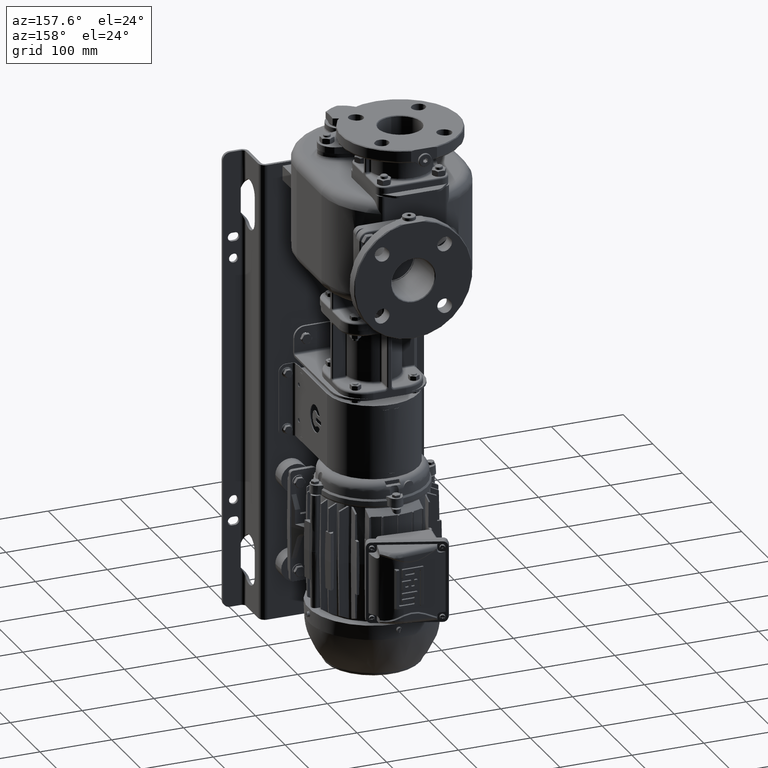
[diagram: clean part render]
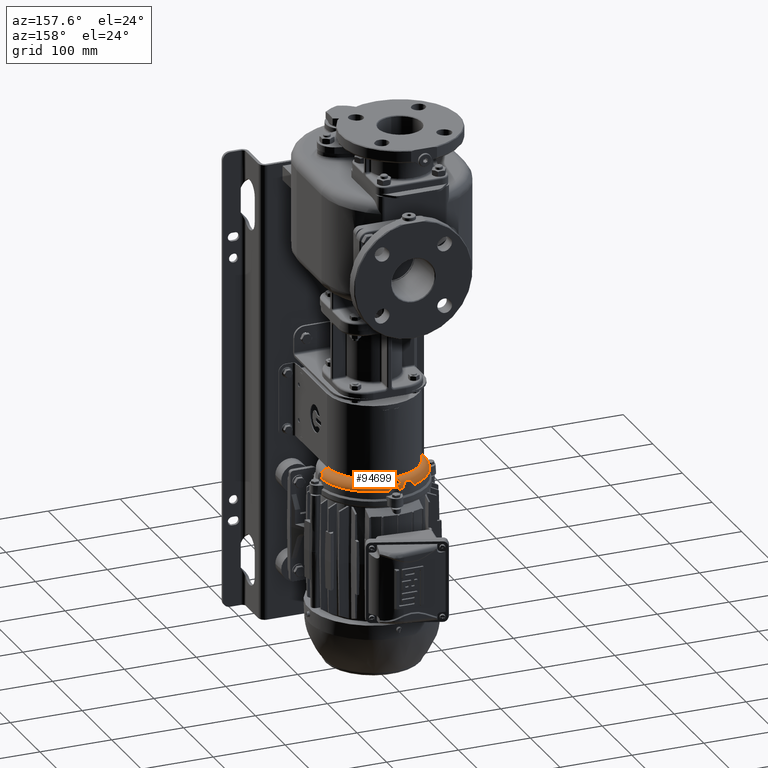
[diagram: same view with one face highlighted and labeled with its STEP entity id]
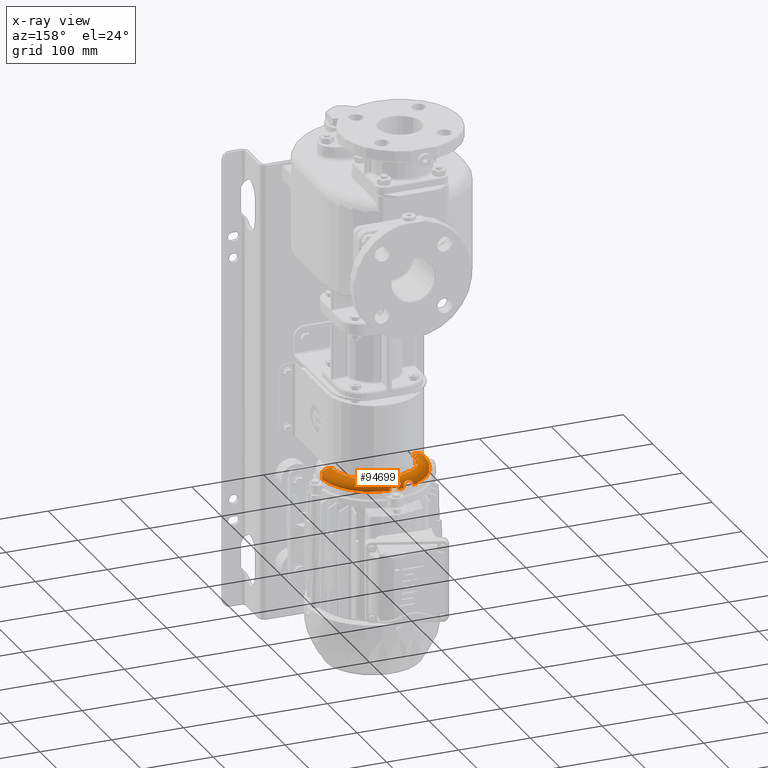
[diagram: x-ray of the same camera — body ghosted, the highlighted face saturated]
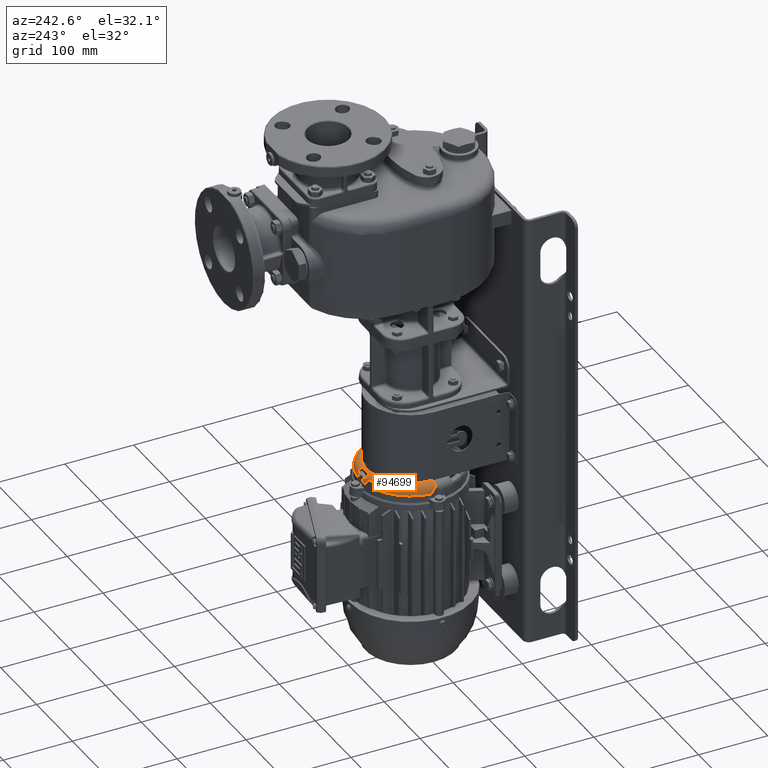
[diagram: same view with one face highlighted and labeled with its STEP entity id]
A machine part, auxiliary view. The second image highlights one B-rep face of the part: STEP entity #94699.
The next image is the same camera in x-ray: the body ghosted, the highlighted face saturated — about 0% of this face is hidden behind the body in this view.
A second angle (auxiliary view) of the same face is appended — the face is thin or edge-on in the first view.
In plain terms, the highlighted toroidal blend (fillet) surface has major radius 61.3609 mm and minor (blend) radius 12 mm.
Its self-contained STEP definition (entity closure, byte-faithful):
#5801=CARTESIAN_POINT('',(0.E0,1.1E2,-3.751076951546E2));
#5802=DIRECTION('',(0.E0,0.E0,-1.E0));
#5803=DIRECTION('',(9.961123558518E-1,8.809185274073E-2,0.E0));
#5804=AXIS2_PLACEMENT_3D('',#5801,#5802,#5803);
#5806=CARTESIAN_POINT('',(5.896753202659E1,1.150000001162E2,-3.737E2));
#5807=CARTESIAN_POINT('',(5.884521457545E1,1.149980258760E2,-3.737225656683E2));
#5808=CARTESIAN_POINT('',(5.860145663651E1,1.149937483262E2,-3.737714563417E2));
#5809=CARTESIAN_POINT('',(5.823836261705E1,1.149863463150E2,-3.738560624991E2));
#5810=CARTESIAN_POINT('',(5.787826012644E1,1.149779672824E2,-3.739518350709E2));
#5811=CARTESIAN_POINT('',(5.752146575027E1,1.149686197348E2,-3.740586780819E2));
#5812=CARTESIAN_POINT('',(5.716832676215E1,1.149583133690E2,-3.741764803763E2));
#5813=CARTESIAN_POINT('',(5.681917664427E1,1.149470586630E2,-3.743051222256E2));
#5814=CARTESIAN_POINT('',(5.647434747582E1,1.149348670443E2,-3.744444731890E2));
#5815=CARTESIAN_POINT('',(5.613416302034E1,1.149217505188E2,-3.745943952956E2));
#5816=CARTESIAN_POINT('',(5.579895230612E1,1.149077228771E2,-3.747547337125E2));
#5817=CARTESIAN_POINT('',(5.546900070796E1,1.148927951311E2,-3.749253521417E2));
#5818=CARTESIAN_POINT('',(5.525282043733E1,1.148822600006E2,-3.750457853768E2));
#5819=CARTESIAN_POINT('',(5.514565610553E1,1.148768439025E2,-3.751076916606E2));
#5821=CARTESIAN_POINT('',(5.490070895829E1,1.171231573677E2,-3.751076951546E2));
#5822=CARTESIAN_POINT('',(5.500989746674E1,1.171177232430E2,-3.750455828245E2));
#5823=CARTESIAN_POINT('',(5.523000209265E1,1.171071549919E2,-3.749247871617E2));
#5824=CARTESIAN_POINT('',(5.556548279473E1,1.170921939787E2,-3.747537819984E2));
#5825=CARTESIAN_POINT('',(5.590582647997E1,1.170781444284E2,-3.745931949041E2));
#5826=CARTESIAN_POINT('',(5.625072867367E1,1.170650174647E2,-3.744431530216E2));
#5827=CARTESIAN_POINT('',(5.659983895779E1,1.170528253154E2,-3.743037961178E2));
#5828=CARTESIAN_POINT('',(5.695281740449E1,1.170415785834E2,-3.741752453826E2));
#5829=CARTESIAN_POINT('',(5.730930486048E1,1.170312873849E2,-3.740576164457E2));
#5830=CARTESIAN_POINT('',(5.766895749367E1,1.170219602669E2,-3.739510069995E2));
#5831=CARTESIAN_POINT('',(5.803141583320E1,1.170136050448E2,-3.738555063737E2));
#5832=CARTESIAN_POINT('',(5.839636695900E1,1.170062277631E2,-3.737711836583E2));
#5833=CARTESIAN_POINT('',(5.864100415282E1,1.170019667786E2,-3.737224803820E2));
#5834=CARTESIAN_POINT('',(5.876368366142E1,1.17E2,-3.737E2));
#5836=CARTESIAN_POINT('',(0.E0,1.1E2,-3.751076951546E2));
#5837=DIRECTION('',(0.E0,0.E0,-1.E0));
#5838=DIRECTION('',(9.632169922788E-1,2.687248142346E-1,0.E0));
#5839=AXIS2_PLACEMENT_3D('',#5836,#5837,#5838);
#5841=CARTESIAN_POINT('',(5.724642863786E1,1.250000037673E2,-3.737E2));
#5842=CARTESIAN_POINT('',(5.712037132134E1,1.249980231230E2,-3.737226388675E2));
#5843=CARTESIAN_POINT('',(5.686877122603E1,1.249937144263E2,-3.737718244519E2));
#5844=CARTESIAN_POINT('',(5.649455411997E1,1.249862827982E2,-3.738567936880E2));
#5845=CARTESIAN_POINT('',(5.612358914552E1,1.249778653173E2,-3.739529991507E2));
#5846=CARTESIAN_POINT('',(5.575649802788E1,1.249684844713E2,-3.740602245074E2));
#5847=CARTESIAN_POINT('',(5.539352874828E1,1.249581487619E2,-3.741783618064E2));
#5848=CARTESIAN_POINT('',(5.503511116763E1,1.249468741721E2,-3.743072307626E2));
#5849=CARTESIAN_POINT('',(5.468153712688E1,1.249346735868E2,-3.744466852707E2));
#5850=CARTESIAN_POINT('',(5.433332843465E1,1.249215685738E2,-3.745964717278E2));
#5851=CARTESIAN_POINT('',(5.399074355662E1,1.249075771348E2,-3.747564115335E2));
#5852=CARTESIAN_POINT('',(5.365403230480E1,1.248927026568E2,-3.749263644196E2));
#5853=CARTESIAN_POINT('',(5.343368020908E1,1.248822374849E2,-3.750461390666E2));
#5854=CARTESIAN_POINT('',(5.332452805034E1,1.248768537591E2,-3.751076753343E2));
#5856=CARTESIAN_POINT('',(5.264622205600E1,1.271231573677E2,-3.751076951546E2));
#5857=CARTESIAN_POINT('',(5.276110331132E1,1.271177239650E2,-3.750455910771E2));
#5858=CARTESIAN_POINT('',(5.299257468573E1,1.271071552831E2,-3.749247904900E2));
#5859=CARTESIAN_POINT('',(5.334508558706E1,1.270921879136E2,-3.747537126738E2));
#5860=CARTESIAN_POINT('',(5.370235368321E1,1.270781299563E2,-3.745930294867E2));
#5861=CARTESIAN_POINT('',(5.406402005558E1,1.270649945622E2,-3.744428912448E2));
#5862=CARTESIAN_POINT('',(5.442967205381E1,1.270527957471E2,-3.743034581506E2));
#5863=CARTESIAN_POINT('',(5.479891062847E1,1.270415453112E2,-3.741748650804E2));
#5864=CARTESIAN_POINT('',(5.517131919932E1,1.270312540444E2,-3.740572353624E2));
#5865=CARTESIAN_POINT('',(5.554649902884E1,1.270219306980E2,-3.739506690248E2));
#5866=CARTESIAN_POINT('',(5.592403661087E1,1.270135828414E2,-3.738552525881E2));
#5867=CARTESIAN_POINT('',(5.630357476445E1,1.270062157490E2,-3.737710463360E2));
#5868=CARTESIAN_POINT('',(5.655756742747E1,1.270019627989E2,-3.737224348941E2));
#5869=CARTESIAN_POINT('',(5.668483498662E1,1.27E2,-3.737E2));
#5871=CARTESIAN_POINT('',(0.E0,1.1E2,-3.751076951546E2));
#5872=DIRECTION('',(0.E0,0.E0,-1.E0));
#5873=DIRECTION('',(8.446604790493E-1,5.353024146519E-1,0.E0));
#5874=AXIS2_PLACEMENT_3D('',#5871,#5872,#5873);
#5876=CARTESIAN_POINT('',(5.099746091622E1,1.400238155063E2,-3.737E2));
#5877=CARTESIAN_POINT('',(5.085572289491E1,1.400189569140E2,-3.737230390703E2));
#5878=CARTESIAN_POINT('',(5.057446281312E1,1.400077429784E2,-3.737729424295E2));
#5879=CARTESIAN_POINT('',(5.015911378247E1,1.399866045710E2,-3.738591175219E2));
#5880=CARTESIAN_POINT('',(4.975070000767E1,1.399613454249E2,-3.739563694733E2));
#5881=CARTESIAN_POINT('',(4.934945427373E1,1.399321623649E2,-3.740644763649E2));
#5882=CARTESIAN_POINT('',(4.895562564921E1,1.398992571885E2,-3.741832099594E2));
#5883=CARTESIAN_POINT('',(4.856943491881E1,1.398628341497E2,-3.743123438591E2));
#5884=CARTESIAN_POINT('',(4.819108802101E1,1.398230995094E2,-3.744516521529E2));
#5885=CARTESIAN_POINT('',(4.782077230562E1,1.397802603135E2,-3.746009116553E2));
#5886=CARTESIAN_POINT('',(4.745866797064E1,1.397345251264E2,-3.747598973456E2));
#5887=CARTESIAN_POINT('',(4.710491623908E1,1.396860984119E2,-3.749284002960E2));
#5888=CARTESIAN_POINT('',(4.687480067653E1,1.396521652509E2,-3.750469084725E2));
#5889=CARTESIAN_POINT('',(4.676114879940E1,1.396348136146E2,-3.751076951546E2));
#5891=CARTESIAN_POINT('',(2.963481361457E1,1.567611487994E2,-3.751076951546E2));
#5892=CARTESIAN_POINT('',(2.965216526799E1,1.568748007882E2,-3.750469084127E2));
#5893=CARTESIAN_POINT('',(2.968609845484E1,1.571049165345E2,-3.749284001462E2));
#5894=CARTESIAN_POINT('',(2.973452519507E1,1.574586684902E2,-3.747598971071E2));
#5895=CARTESIAN_POINT('',(2.978026036952E1,1.578207727713E2,-3.746009114605E2));
#5896=CARTESIAN_POINT('',(2.982309955858E1,1.581910884650E2,-3.744516519810E2));
#5897=CARTESIAN_POINT('',(2.986283420783E1,1.585694354972E2,-3.743123436545E2));
#5898=CARTESIAN_POINT('',(2.989925724200E1,1.589556262567E2,-3.741832097681E2));
#5899=CARTESIAN_POINT('',(2.993216238960E1,1.593494546035E2,-3.740644762738E2));
#5900=CARTESIAN_POINT('',(2.996134543348E1,1.597507001430E2,-3.739563694405E2));
#5901=CARTESIAN_POINT('',(2.998660457051E1,1.601591137840E2,-3.738591175231E2));
#5902=CARTESIAN_POINT('',(3.000774297278E1,1.605744626920E2,-3.737729424532E2));
#5903=CARTESIAN_POINT('',(3.001895691202E1,1.608557228375E2,-3.737230390797E2));
#5904=CARTESIAN_POINT('',(3.002381550634E1,1.609974609162E2,-3.737E2));
#5906=CARTESIAN_POINT('',(0.E0,1.1E2,-3.751076951546E2));
#5907=DIRECTION('',(0.E0,0.E0,-1.E0));
#5908=DIRECTION('',(3.093006625459E-1,9.509643001442E-1,0.E0));
#5909=AXIS2_PLACEMENT_3D('',#5906,#5907,#5908);
#5911=CARTESIAN_POINT('',(1.7E1,1.666848349866E2,-3.737E2));
#5912=CARTESIAN_POINT('',(1.700196279890E1,1.665575674275E2,-3.737224348941E2));
#5913=CARTESIAN_POINT('',(1.700621574898E1,1.663035747646E2,-3.737710463360E2));
#5914=CARTESIAN_POINT('',(1.701358284144E1,1.659240366110E2,-3.738552525881E2));
#5915=CARTESIAN_POINT('',(1.702193069797E1,1.655464990289E2,-3.739506690248E2));
#5916=CARTESIAN_POINT('',(1.703125404441E1,1.651713191994E2,-3.740572353623E2));
#5917=CARTESIAN_POINT('',(1.704154531123E1,1.647989106286E2,-3.741748650803E2));
#5918=CARTESIAN_POINT('',(1.705279574709E1,1.644296720538E2,-3.743034581506E2));
#5919=CARTESIAN_POINT('',(1.706499456216E1,1.640640200556E2,-3.744428912448E2));
#5920=CARTESIAN_POINT('',(1.707812995628E1,1.637023536832E2,-3.745930294866E2));
#5921=CARTESIAN_POINT('',(1.709218791357E1,1.633450855871E2,-3.747537126738E2));
#5922=CARTESIAN_POINT('',(1.710715528307E1,1.629925746857E2,-3.749247904901E2));
#5923=CARTESIAN_POINT('',(1.711772396499E1,1.627611033113E2,-3.750455910772E2));
#5924=CARTESIAN_POINT('',(1.712315736773E1,1.626462220560E2,-3.751076951546E2));
#5926=CARTESIAN_POINT('',(1.487684263227E1,1.633245418949E2,-3.751076951546E2));
#5927=CARTESIAN_POINT('',(1.488222510297E1,1.634336685937E2,-3.750461732330E2));
#5928=CARTESIAN_POINT('',(1.489270551158E1,1.636539748711E2,-3.749263816144E2));
#5929=CARTESIAN_POINT('',(1.490757686785E1,1.639907690127E2,-3.747564012344E2));
#5930=CARTESIAN_POINT('',(1.492157377845E1,1.643334486070E2,-3.745964158142E2));
#5931=CARTESIAN_POINT('',(1.493468005224E1,1.646817197223E2,-3.744466104193E2));
#5932=CARTESIAN_POINT('',(1.494687815761E1,1.650352327136E2,-3.743071854369E2));
#5933=CARTESIAN_POINT('',(1.495815215151E1,1.653936423999E2,-3.741783230970E2));
#5934=CARTESIAN_POINT('',(1.496848655110E1,1.657565769604E2,-3.740602003692E2));
#5935=CARTESIAN_POINT('',(1.497786749420E1,1.661236739242E2,-3.739529756989E2));
#5936=CARTESIAN_POINT('',(1.498628193110E1,1.664945474583E2,-3.738567982450E2));
#5937=CARTESIAN_POINT('',(1.499371880160E1,1.668688580701E2,-3.737717944263E2));
#5938=CARTESIAN_POINT('',(1.499801634673E1,1.671203276520E2,-3.737226732606E2));
#5939=CARTESIAN_POINT('',(1.5E1,1.672465764693E2,-3.737E2));
#5941=CARTESIAN_POINT('',(0.E0,1.1E2,-3.751076951546E2));
#5942=DIRECTION('',(0.E0,0.E0,-1.E0));
#5943=DIRECTION('',(1.286677010520E-1,9.916877647254E-1,0.E0));
#5944=AXIS2_PLACEMENT_3D('',#5941,#5942,#5943);
#5946=CARTESIAN_POINT('',(7.000000140605E0,1.687636945958E2,-3.737E2));
#5947=CARTESIAN_POINT('',(7.001966950065E0,1.686410131605E2,-3.737224807350E2));
#5948=CARTESIAN_POINT('',(7.006226948349E0,1.683964031038E2,-3.737711750912E2));
#5949=CARTESIAN_POINT('',(7.013604560101E0,1.680314394986E2,-3.738555006337E2));
#5950=CARTESIAN_POINT('',(7.021959688858E0,1.676689807307E2,-3.739510004457E2));
#5951=CARTESIAN_POINT('',(7.031286846405E0,1.673093244612E2,-3.740576102768E2));
#5952=CARTESIAN_POINT('',(7.041578069062E0,1.669528342669E2,-3.741752395066E2));
#5953=CARTESIAN_POINT('',(7.052824845954E0,1.665998528749E2,-3.743037907559E2));
#5954=CARTESIAN_POINT('',(7.065017063660E0,1.662507398058E2,-3.744431484208E2));
#5955=CARTESIAN_POINT('',(7.078144070763E0,1.659058346718E2,-3.745931908821E2));
#5956=CARTESIAN_POINT('',(7.092193829966E0,1.655654888299E2,-3.747537800516E2));
#5957=CARTESIAN_POINT('',(7.107154501976E0,1.652300033636E2,-3.749247824836E2));
#5958=CARTESIAN_POINT('',(7.117723940921E0,1.650099022360E2,-3.750455888164E2));
#5959=CARTESIAN_POINT('',(7.123158116505E0,1.649007127060E2,-3.751077017275E2));
#5961=CARTESIAN_POINT('',(4.876842632273E0,1.651456582239E2,-3.751076951546E2));
#5962=CARTESIAN_POINT('',(4.882258757246E0,1.652528230885E2,-3.750457885629E2));
#5963=CARTESIAN_POINT('',(4.892795795794E0,1.654690012902E2,-3.749253496612E2));
#5964=CARTESIAN_POINT('',(4.907722847133E0,1.657989554765E2,-3.747547326836E2));
#5965=CARTESIAN_POINT('',(4.921750737546E0,1.661341673011E2,-3.745943931625E2));
#5966=CARTESIAN_POINT('',(4.934867249275E0,1.664743533106E2,-3.744444707474E2));
#5967=CARTESIAN_POINT('',(4.947058914319E0,1.668191839456E2,-3.743051193783E2));
#5968=CARTESIAN_POINT('',(4.958313641941E0,1.671683356263E2,-3.741764772529E2));
#5969=CARTESIAN_POINT('',(4.968620020595E0,1.675214760451E2,-3.740586748059E2));
#5970=CARTESIAN_POINT('',(4.977967592341E0,1.678782724243E2,-3.739518315719E2));
#5971=CARTESIAN_POINT('',(4.986346563390E0,1.682383748749E2,-3.738560594946E2));
#5972=CARTESIAN_POINT('',(4.993748795377E0,1.686014765491E2,-3.737714515958E2));
#5973=CARTESIAN_POINT('',(4.998025749156E0,1.688452197147E2,-3.737225657904E2));
#5974=CARTESIAN_POINT('',(5.E0,1.689675378277E2,-3.737E2));
#5976=CARTESIAN_POINT('',(0.E0,1.1E2,-3.751076951546E2));
#5977=DIRECTION('',(0.E0,0.E0,-1.E0));
#5978=DIRECTION('',(-8.809185274073E-2,9.961123558518E-1,0.E0));
#5979=AXIS2_PLACEMENT_3D('',#5976,#5977,#5978);
#5981=CARTESIAN_POINT('',(-5.000000116136E0,1.689675320295E2,-3.737E2));
#5982=CARTESIAN_POINT('',(-4.998025875969E0,1.688452145780E2,
-3.737225656684E2));
#5983=CARTESIAN_POINT('',(-4.993748326473E0,1.686014566464E2,
-3.737714563394E2));
#5984=CARTESIAN_POINT('',(-4.986346315084E0,1.682383626232E2,
-3.738560624977E2));
#5985=CARTESIAN_POINT('',(-4.977967282542E0,1.678782601326E2,
-3.739518350692E2));
#5986=CARTESIAN_POINT('',(-4.968619734990E0,1.675214657554E2,
-3.740586780803E2));
#5987=CARTESIAN_POINT('',(-4.958313369154E0,1.671683267665E2,
-3.741764803748E2));
#5988=CARTESIAN_POINT('',(-4.947058663099E0,1.668191766479E2,
-3.743051222242E2));
#5989=CARTESIAN_POINT('',(-4.934867044359E0,1.664743474787E2,
-3.744444731878E2));
#5990=CARTESIAN_POINT('',(-4.921750518888E0,1.661341630224E2,
-3.745943952945E2));
#5991=CARTESIAN_POINT('',(-4.907722877093E0,1.657989523076E2,
-3.747547337119E2));
#5992=CARTESIAN_POINT('',(-4.892795131270E0,1.654690007085E2,
-3.749253521410E2));
#5993=CARTESIAN_POINT('',(-4.882260000311E0,1.652528204380E2,
-3.750457853773E2));
#5994=CARTESIAN_POINT('',(-4.876843902262E0,1.651456561060E2,
-3.751076916613E2));
#5996=CARTESIAN_POINT('',(-7.123157367727E0,1.649007089583E2,
-3.751076951546E2));
#5997=CARTESIAN_POINT('',(-7.117723242976E0,1.650098974667E2,
-3.750455828245E2));
#5998=CARTESIAN_POINT('',(-7.107154991877E0,1.652300020927E2,
-3.749247871617E2));
#5999=CARTESIAN_POINT('',(-7.092193978689E0,1.655654827947E2,
-3.747537819984E2));
#6000=CARTESIAN_POINT('',(-7.078144428428E0,1.659058264800E2,
-3.745931949041E2));
#6001=CARTESIAN_POINT('',(-7.065017464655E0,1.662507286737E2,
-3.744431530216E2));
#6002=CARTESIAN_POINT('',(-7.052825315390E0,1.665998389578E2,
-3.743037961178E2));
#6003=CARTESIAN_POINT('',(-7.041578583370E0,1.669528174045E2,
-3.741752453826E2));
#6004=CARTESIAN_POINT('',(-7.031287384888E0,1.673093048605E2,
-3.740576164457E2));
#6005=CARTESIAN_POINT('',(-7.021960266925E0,1.676689574937E2,
-3.739510069995E2));
#6006=CARTESIAN_POINT('',(-7.013605044808E0,1.680314158332E2,
-3.738555063737E2));
#6007=CARTESIAN_POINT('',(-7.006227763126E0,1.683963669590E2,
-3.737711836583E2));
#6008=CARTESIAN_POINT('',(-7.001966778573E0,1.686410041528E2,
-3.737224803820E2));
#6009=CARTESIAN_POINT('',(-7.E0,1.687636836614E2,-3.737E2));
#6011=CARTESIAN_POINT('',(0.E0,1.1E2,-3.751076951546E2));
#6012=DIRECTION('',(0.E0,0.E0,-1.E0));
#6013=DIRECTION('',(-2.687248142346E-1,9.632169922788E-1,0.E0));
#6014=AXIS2_PLACEMENT_3D('',#6011,#6012,#6013);
#6016=CARTESIAN_POINT('',(-1.500000376728E1,1.672464286387E2,-3.737E2));
#6017=CARTESIAN_POINT('',(-1.499802312300E1,1.671203713212E2,
-3.737226388677E2));
#6018=CARTESIAN_POINT('',(-1.499371442635E1,1.668687712268E2,
-3.737718244516E2));
#6019=CARTESIAN_POINT('',(-1.498628279816E1,1.664945541203E2,
-3.738567936879E2));
#6020=CARTESIAN_POINT('',(-1.497786531736E1,1.661235891465E2,
-3.739529991504E2));
#6021=CARTESIAN_POINT('',(-1.496848447133E1,1.657564980289E2,
-3.740602245071E2));
#6022=CARTESIAN_POINT('',(-1.495814876192E1,1.653935287496E2,
-3.741783618059E2));
#6023=CARTESIAN_POINT('',(-1.494687417212E1,1.650351111691E2,
-3.743072307620E2));
#6024=CARTESIAN_POINT('',(-1.493467358688E1,1.646815371289E2,
-3.744466852699E2));
#6025=CARTESIAN_POINT('',(-1.492156857391E1,1.643333284361E2,
-3.745964717271E2));
#6026=CARTESIAN_POINT('',(-1.490757713479E1,1.639907435568E2,
-3.747564115334E2));
#6027=CARTESIAN_POINT('',(-1.489270265679E1,1.636540323042E2,
-3.749263644198E2));
#6028=CARTESIAN_POINT('',(-1.488223748476E1,1.634336802089E2,
-3.750461390670E2));
#6029=CARTESIAN_POINT('',(-1.487685375896E1,1.633245280505E2,
-3.751076753344E2));
#6031=CARTESIAN_POINT('',(-1.712315736773E1,1.626462220560E2,
-3.751076951546E2));
#6032=CARTESIAN_POINT('',(-1.711772396499E1,1.627611033113E2,
-3.750455910771E2));
#6033=CARTESIAN_POINT('',(-1.710715528307E1,1.629925746857E2,
-3.749247904900E2));
#6034=CARTESIAN_POINT('',(-1.709218791357E1,1.633450855871E2,
-3.747537126738E2));
#6035=CARTESIAN_POINT('',(-1.707812995628E1,1.637023536832E2,
-3.745930294867E2));
#6036=CARTESIAN_POINT('',(-1.706499456216E1,1.640640200556E2,
-3.744428912448E2));
#6037=CARTESIAN_POINT('',(-1.705279574709E1,1.644296720538E2,
-3.743034581506E2));
#6038=CARTESIAN_POINT('',(-1.704154531124E1,1.647989106285E2,
-3.741748650804E2));
#6039=CARTESIAN_POINT('',(-1.703125404442E1,1.651713191993E2,
-3.740572353624E2));
#6040=CARTESIAN_POINT('',(-1.702193069797E1,1.655464990288E2,
-3.739506690248E2));
#6041=CARTESIAN_POINT('',(-1.701358284144E1,1.659240366109E2,
-3.738552525881E2));
#6042=CARTESIAN_POINT('',(-1.700621574899E1,1.663035747644E2,
-3.737710463360E2));
#6043=CARTESIAN_POINT('',(-1.700196279890E1,1.665575674275E2,
-3.737224348941E2));
#6044=CARTESIAN_POINT('',(-1.7E1,1.666848349866E2,-3.737E2));
#6046=CARTESIAN_POINT('',(0.E0,1.1E2,-3.751076951546E2));
#6047=DIRECTION('',(0.E0,0.E0,-1.E0));
#6048=DIRECTION('',(-5.353024146519E-1,8.446604790493E-1,0.E0));
#6049=AXIS2_PLACEMENT_3D('',#6046,#6047,#6048);
#6051=CARTESIAN_POINT('',(-3.002381550634E1,1.609974609162E2,-3.737E2));
#6052=CARTESIAN_POINT('',(-3.001895691399E1,1.608557228949E2,
-3.737230390703E2));
#6053=CARTESIAN_POINT('',(-3.000774297840E1,1.605744628131E2,
-3.737729424295E2));
#6054=CARTESIAN_POINT('',(-2.998660457097E1,1.601591137825E2,
-3.738591175219E2));
#6055=CARTESIAN_POINT('',(-2.996134542489E1,1.597507000077E2,
-3.739563694733E2));
#6056=CARTESIAN_POINT('',(-2.993216236486E1,1.593494542737E2,
-3.740644763649E2));
#6057=CARTESIAN_POINT('',(-2.989925718855E1,1.589556256492E2,
-3.741832099594E2));
#6058=CARTESIAN_POINT('',(-2.986283414971E1,1.585694349188E2,
-3.743123438591E2));
#6059=CARTESIAN_POINT('',(-2.982309950935E1,1.581910880210E2,
-3.744516521529E2));
#6060=CARTESIAN_POINT('',(-2.978026031353E1,1.578207723056E2,
-3.746009116553E2));
#6061=CARTESIAN_POINT('',(-2.973452512644E1,1.574586679706E2,
-3.747598973456E2));
#6062=CARTESIAN_POINT('',(-2.968609841188E1,1.571049162391E2,
-3.749284002960E2));
#6063=CARTESIAN_POINT('',(-2.965216525094E1,1.568748006765E2,
-3.750469084725E2));
#6064=CARTESIAN_POINT('',(-2.963481361457E1,1.567611487994E2,
-3.751076951546E2));
#6066=CARTESIAN_POINT('',(-4.676114879940E1,1.396348136146E2,
-3.751076951546E2));
#6067=CARTESIAN_POINT('',(-4.687480078824E1,1.396521652680E2,
-3.750469084127E2));
#6068=CARTESIAN_POINT('',(-4.710491653448E1,1.396860984548E2,
-3.749284001462E2));
#6069=CARTESIAN_POINT('',(-4.745866849016E1,1.397345251951E2,
-3.747598971071E2));
#6070=CARTESIAN_POINT('',(-4.782077277134E1,1.397802603695E2,
-3.746009114605E2));
#6071=CARTESIAN_POINT('',(-4.819108846496E1,1.398230995586E2,
-3.744516519810E2));
#6072=CARTESIAN_POINT('',(-4.856943549720E1,1.398628342078E2,
-3.743123436545E2));
#6073=CARTESIAN_POINT('',(-4.895562625673E1,1.398992572420E2,
-3.741832097681E2));
#6074=CARTESIAN_POINT('',(-4.934945460355E1,1.399321623896E2,
-3.740644762738E2));
#6075=CARTESIAN_POINT('',(-4.975070014296E1,1.399613454335E2,
-3.739563694405E2));
#6076=CARTESIAN_POINT('',(-5.015911378398E1,1.399866045705E2,
-3.738591175231E2));
#6077=CARTESIAN_POINT('',(-5.057446269196E1,1.400077429728E2,
-3.737729424532E2));
#6078=CARTESIAN_POINT('',(-5.085572283753E1,1.400189569120E2,
-3.737230390797E2));
#6079=CARTESIAN_POINT('',(-5.099746091622E1,1.400238155063E2,-3.737E2));
#6081=CARTESIAN_POINT('',(0.E0,1.1E2,-3.751076951546E2));
#6082=DIRECTION('',(0.E0,0.E0,-1.E0));
#6083=DIRECTION('',(-9.509643001442E-1,3.093006625459E-1,0.E0));
#6084=AXIS2_PLACEMENT_3D('',#6081,#6082,#6083);
#6086=CARTESIAN_POINT('',(-5.668483498662E1,1.27E2,-3.737E2));
#6087=CARTESIAN_POINT('',(-5.655756742752E1,1.270019627989E2,
-3.737224348941E2));
#6088=CARTESIAN_POINT('',(-5.630357476458E1,1.270062157490E2,
-3.737710463360E2));
#6089=CARTESIAN_POINT('',(-5.592403661096E1,1.270135828414E2,
-3.738552525881E2));
#6090=CARTESIAN_POINT('',(-5.554649902893E1,1.270219306980E2,
-3.739506690248E2));
#6091=CARTESIAN_POINT('',(-5.517131919944E1,1.270312540444E2,
-3.740572353623E2));
#6092=CARTESIAN_POINT('',(-5.479891062862E1,1.270415453112E2,
-3.741748650803E2));
#6093=CARTESIAN_POINT('',(-5.442967205384E1,1.270527957471E2,
-3.743034581506E2));
#6094=CARTESIAN_POINT('',(-5.406402005558E1,1.270649945622E2,
-3.744428912448E2));
#6095=CARTESIAN_POINT('',(-5.370235368322E1,1.270781299563E2,
-3.745930294866E2));
#6096=CARTESIAN_POINT('',(-5.334508558706E1,1.270921879136E2,
-3.747537126738E2));
#6097=CARTESIAN_POINT('',(-5.299257468566E1,1.271071552831E2,
-3.749247904901E2));
#6098=CARTESIAN_POINT('',(-5.276110331130E1,1.271177239650E2,
-3.750455910772E2));
#6099=CARTESIAN_POINT('',(-5.264622205600E1,1.271231573677E2,
-3.751076951546E2));
#6101=CARTESIAN_POINT('',(-5.332454189493E1,1.248768426323E2,
-3.751076951546E2));
#6102=CARTESIAN_POINT('',(-5.343366859373E1,1.248822251030E2,
-3.750461732330E2));
#6103=CARTESIAN_POINT('',(-5.365397487114E1,1.248927055116E2,
-3.749263816144E2));
#6104=CARTESIAN_POINT('',(-5.399076901272E1,1.249075768679E2,
-3.747564012344E2));
#6105=CARTESIAN_POINT('',(-5.433344860700E1,1.249215737785E2,
-3.745964158142E2));
#6106=CARTESIAN_POINT('',(-5.468171972235E1,1.249346800522E2,
-3.744466104193E2));
#6107=CARTESIAN_POINT('',(-5.503523271361E1,1.249468781576E2,
-3.743071854369E2));
#6108=CARTESIAN_POINT('',(-5.539364239991E1,1.249581521515E2,
-3.741783230970E2));
#6109=CARTESIAN_POINT('',(-5.575657696037E1,1.249684865511E2,
-3.740602003692E2));
#6110=CARTESIAN_POINT('',(-5.612367392416E1,1.249778674942E2,
-3.739529756989E2));
#6111=CARTESIAN_POINT('',(-5.649454745833E1,1.249862819311E2,
-3.738567982450E2));
#6112=CARTESIAN_POINT('',(-5.686885807015E1,1.249937188016E2,
-3.737717944263E2));
#6113=CARTESIAN_POINT('',(-5.712032765200E1,1.249980163467E2,
-3.737226732606E2));
#6114=CARTESIAN_POINT('',(-5.724657646934E1,1.25E2,-3.737E2));
#6116=CARTESIAN_POINT('',(0.E0,1.1E2,-3.751076951546E2));
#6117=DIRECTION('',(0.E0,0.E0,-1.E0));
#6118=DIRECTION('',(-9.916877647254E-1,1.286677010520E-1,0.E0));
#6119=AXIS2_PLACEMENT_3D('',#6116,#6117,#6118);
#6121=CARTESIAN_POINT('',(-5.876369448947E1,1.170000001392E2,-3.737E2));
#6122=CARTESIAN_POINT('',(-5.864101307307E1,1.170019669484E2,
-3.737224807315E2));
#6123=CARTESIAN_POINT('',(-5.839640275283E1,1.170062269563E2,
-3.737711751744E2));
#6124=CARTESIAN_POINT('',(-5.803143926932E1,1.170136045648E2,
-3.738555006893E2));
#6125=CARTESIAN_POINT('',(-5.766898050599E1,1.170219596944E2,
-3.739510005090E2));
#6126=CARTESIAN_POINT('',(-5.730932427226E1,1.170312868516E2,
-3.740576103363E2));
#6127=CARTESIAN_POINT('',(-5.695283410494E1,1.170415780740E2,
-3.741752395631E2));
#6128=CARTESIAN_POINT('',(-5.659985274189E1,1.170528248504E2,
-3.743037908069E2));
#6129=CARTESIAN_POINT('',(-5.625073970064E1,1.170650170675E2,
-3.744431484650E2));
#6130=CARTESIAN_POINT('',(-5.590583459390E1,1.170781440739E2,
-3.745931909174E2));
#6131=CARTESIAN_POINT('',(-5.556548877937E1,1.170921938323E2,
-3.747537800777E2));
#6132=CARTESIAN_POINT('',(-5.523000333715E1,1.171071545028E2,
-3.749247824941E2));
#6133=CARTESIAN_POINT('',(-5.500990223141E1,1.171177239420E2,
-3.750455888272E2));
#6134=CARTESIAN_POINT('',(-5.490071270952E1,1.171231581172E2,
-3.751077017337E2));
#6136=CARTESIAN_POINT('',(-5.514565822392E1,1.148768426323E2,
-3.751076951546E2));
#6137=CARTESIAN_POINT('',(-5.525282308848E1,1.148822587572E2,
-3.750457885629E2));
#6138=CARTESIAN_POINT('',(-5.546900129024E1,1.148927957958E2,
-3.749253496612E2));
#6139=CARTESIAN_POINT('',(-5.579895547645E1,1.149077228471E2,
-3.747547326836E2));
#6140=CARTESIAN_POINT('',(-5.613416730110E1,1.149217507375E2,
-3.745943931625E2));
#6141=CARTESIAN_POINT('',(-5.647435331061E1,1.149348672493E2,
-3.744444707474E2));
#6142=CARTESIAN_POINT('',(-5.681918394558E1,1.149470589143E2,
-3.743051193783E2));
#6143=CARTESIAN_POINT('',(-5.716833562635E1,1.149583136419E2,
-3.741764772529E2));
#6144=CARTESIAN_POINT('',(-5.752147604509E1,1.149686200206E2,
-3.740586748059E2));
#6145=CARTESIAN_POINT('',(-5.787827242428E1,1.149779675923E2,
-3.739518315719E2));
#6146=CARTESIAN_POINT('',(-5.823837487490E1,1.149863465634E2,
-3.738560594946E2));
#6147=CARTESIAN_POINT('',(-5.860147654906E1,1.149937487954E2,
-3.737714515958E2));
#6148=CARTESIAN_POINT('',(-5.884521971474E1,1.149980257492E2,
-3.737225657904E2));
#6149=CARTESIAN_POINT('',(-5.896753782769E1,1.15E2,-3.737E2));
#6151=CARTESIAN_POINT('',(0.E0,1.1E2,-3.751076951546E2));
#6152=DIRECTION('',(0.E0,0.E0,-1.E0));
#6153=DIRECTION('',(-1.E0,0.E0,0.E0));
#6154=AXIS2_PLACEMENT_3D('',#6151,#6152,#6153);
#6156=CARTESIAN_POINT('',(-6.136088163143E1,1.1E2,-3.855E2));
#6157=DIRECTION('',(0.E0,1.E0,0.E0));
#6158=DIRECTION('',(-7.863458185462E-1,0.E0,6.177865761369E-1));
#6159=AXIS2_PLACEMENT_3D('',#6156,#6157,#6158);
#6161=CARTESIAN_POINT('',(-7.309563455094E1,1.160361004685E2,
-3.848719685251E2));
#6162=CARTESIAN_POINT('',(-7.309073135102E1,1.160374586623E2,
-3.847808600951E2));
#6163=CARTESIAN_POINT('',(-7.307906358026E1,1.160375626873E2,
-3.845988706746E2));
#6164=CARTESIAN_POINT('',(-7.305596528863E1,1.160298417881E2,
-3.843262809388E2));
#6165=CARTESIAN_POINT('',(-7.302736321916E1,1.160142015989E2,
-3.840549482271E2));
#6166=CARTESIAN_POINT('',(-7.299338151788E1,1.159906242774E2,
-3.837854508786E2));
#6167=CARTESIAN_POINT('',(-7.295418003372E1,1.159591000578E2,
-3.835183550485E2));
#6168=CARTESIAN_POINT('',(-7.290997871825E1,1.159196524993E2,
-3.832543479014E2));
#6169=CARTESIAN_POINT('',(-7.286112380885E1,1.158724168443E2,
-3.829944960372E2));
#6170=CARTESIAN_POINT('',(-7.280799926596E1,1.158175783471E2,
-3.827396446577E2));
#6171=CARTESIAN_POINT('',(-7.275092521194E1,1.157552549422E2,
-3.824901193263E2));
#6172=CARTESIAN_POINT('',(-7.269026051625E1,1.156855958198E2,
-3.822463255507E2));
#6173=CARTESIAN_POINT('',(-7.262637589647E1,1.156087610916E2,
-3.820086108806E2));
#6174=CARTESIAN_POINT('',(-7.255964554832E1,1.155249139771E2,
-3.817772624107E2));
#6175=CARTESIAN_POINT('',(-7.249044819984E1,1.154342252144E2,
-3.815525273871E2));
#6176=CARTESIAN_POINT('',(-7.241916026050E1,1.153368673302E2,
-3.813346045845E2));
#6177=CARTESIAN_POINT('',(-7.234615389623E1,1.152330142897E2,
-3.811236522565E2));
#6178=CARTESIAN_POINT('',(-7.227179481603E1,1.151228406047E2,
-3.809197923218E2));
#6179=CARTESIAN_POINT('',(-7.219643771047E1,1.150065161155E2,
-3.807231075447E2));
#6180=CARTESIAN_POINT('',(-7.212042631876E1,1.148842067762E2,
-3.805336505321E2));
#6181=CARTESIAN_POINT('',(-7.204409113845E1,1.147560713663E2,
-3.803514447983E2));
#6182=CARTESIAN_POINT('',(-7.196775188583E1,1.146222654530E2,
-3.801764962051E2));
#6183=CARTESIAN_POINT('',(-7.189171466031E1,1.144829368932E2,
-3.800087898907E2));
#6184=CARTESIAN_POINT('',(-7.181627218692E1,1.143382235714E2,
-3.798482957562E2));
#6185=CARTESIAN_POINT('',(-7.174172114536E1,1.141882917503E2,
-3.796950034928E2));
#6186=CARTESIAN_POINT('',(-7.166828955518E1,1.140331775606E2,
-3.795487826105E2));
#6187=CARTESIAN_POINT('',(-7.159641844067E1,1.138733967035E2,
-3.794099348803E2));
#6188=CARTESIAN_POINT('',(-7.152653830539E1,1.137095581153E2,
-3.792787135797E2));
#6189=CARTESIAN_POINT('',(-7.145886483037E1,1.135418565467E2,
-3.791549713217E2));
#6190=CARTESIAN_POINT('',(-7.139352594330E1,1.133702733288E2,
-3.790384387958E2));
#6191=CARTESIAN_POINT('',(-7.133071249494E1,1.131949515292E2,
-3.789289943521E2));
#6192=CARTESIAN_POINT('',(-7.127058353915E1,1.130159634587E2,
-3.788264869893E2));
#6193=CARTESIAN_POINT('',(-7.121330921941E1,1.128334207109E2,
-3.787308115673E2));
#6194=CARTESIAN_POINT('',(-7.115905356587E1,1.126474316570E2,
-3.786418759022E2));
#6195=CARTESIAN_POINT('',(-7.110798044133E1,1.124581200915E2,
-3.785596099275E2));
#6196=CARTESIAN_POINT('',(-7.106025229181E1,1.122656271489E2,
-3.784839623427E2));
#6197=CARTESIAN_POINT('',(-7.101602834107E1,1.120701106252E2,
-3.784148972231E2));
#6198=CARTESIAN_POINT('',(-7.097546400245E1,1.118717478329E2,
-3.783523930048E2));
#6199=CARTESIAN_POINT('',(-7.093870926847E1,1.116707444304E2,
-3.782964401054E2));
#6200=CARTESIAN_POINT('',(-7.090590197284E1,1.114672834778E2,
-3.782470315792E2));
#6201=CARTESIAN_POINT('',(-7.087719269550E1,1.112617635025E2,
-3.782042005701E2));
#6202=CARTESIAN_POINT('',(-7.085264989261E1,1.110539966430E2,
-3.781678809603E2));
#6203=CARTESIAN_POINT('',(-7.083249007464E1,1.108452571493E2,
-3.781382485039E2));
#6204=CARTESIAN_POINT('',(-7.081674690028E1,1.106358009757E2,
-3.781152321844E2));
#6205=CARTESIAN_POINT('',(-7.080540512628E1,1.104248898092E2,
-3.780987176710E2));
#6206=CARTESIAN_POINT('',(-7.079855066148E1,1.102124033863E2,
-3.780887641534E2));
#6207=CARTESIAN_POINT('',(-7.079703145399E1,1.100708342072E2,
-3.780865610864E2));
#6208=CARTESIAN_POINT('',(-7.079703145399E1,1.1E2,-3.780865610864E2));
#6210=CARTESIAN_POINT('',(0.E0,1.1E2,-3.848719685251E2));
#6211=DIRECTION('',(0.E0,0.E0,1.E0));
#6212=DIRECTION('',(-3.949356578469E-1,9.187087820202E-1,0.E0));
#6213=AXIS2_PLACEMENT_3D('',#6210,#6211,#6212);
#6215=CARTESIAN_POINT('',(-2.893349904857E1,1.773359756166E2,
-3.841887298869E2));
#6216=CARTESIAN_POINT('',(-2.893778019809E1,1.773431964549E2,
-3.842644543492E2));
#6217=CARTESIAN_POINT('',(-2.894592052272E1,1.773562464583E2,
-3.844160311962E2));
#6218=CARTESIAN_POINT('',(-2.895686776706E1,1.773716508306E2,
-3.846438291454E2));
#6219=CARTESIAN_POINT('',(-2.896331895837E1,1.773791330379E2,
-3.847958848691E2));
#6220=CARTESIAN_POINT('',(-2.896633310022E1,1.773821775101E2,
-3.848719685251E2));
#6222=CARTESIAN_POINT('',(-1.366545700481E1,1.820601247856E2,
-3.848719685251E2));
#6223=CARTESIAN_POINT('',(-1.366625339439E1,1.820559153170E2,
-3.847958848691E2));
#6224=CARTESIAN_POINT('',(-1.366741767719E1,1.820461048257E2,
-3.846438291455E2));
#6225=CARTESIAN_POINT('',(-1.366787933839E1,1.820272124010E2,
-3.844160311962E2));
#6226=CARTESIAN_POINT('',(-1.366733050408E1,1.820118414461E2,
-3.842644543492E2));
#6227=CARTESIAN_POINT('',(-1.366684189633E1,1.820034611113E2,
-3.841887298869E2));
#6229=CARTESIAN_POINT('',(0.E0,1.1E2,-3.848719685251E2));
#6230=DIRECTION('',(0.E0,0.E0,1.E0));
#6231=DIRECTION('',(-8.229800096242E-2,9.966077658927E-1,0.E0));
#6232=AXIS2_PLACEMENT_3D('',#6229,#6230,#6231);
#6234=CARTESIAN_POINT('',(1.000000718311E1,1.749999999198E2,-3.743374294849E2));
#6235=CARTESIAN_POINT('',(9.599527029683E0,1.749999999198E2,-3.743134051083E2));
#6236=CARTESIAN_POINT('',(8.793190530761E0,1.750000000372E2,-3.742687966838E2));
#6237=CARTESIAN_POINT('',(7.566477750101E0,1.749999999900E2,-3.742124800874E2));
#6238=CARTESIAN_POINT('',(6.326082416118E0,1.750000000027E2,-3.741658149451E2));
#6239=CARTESIAN_POINT('',(5.074233869425E0,1.749999999993E2,-3.741284283453E2));
#6240=CARTESIAN_POINT('',(3.813411577189E0,1.750000000002E2,-3.740998487235E2));
#6241=CARTESIAN_POINT('',(2.545929185061E0,1.749999999999E2,-3.740797161270E2));
#6242=CARTESIAN_POINT('',(1.274054522478E0,1.75E2,-3.740677511384E2));
#6243=CARTESIAN_POINT('',(-2.559456650730E-6,1.75E2,-3.740637823266E2));
#6244=CARTESIAN_POINT('',(-1.274059547161E0,1.75E2,-3.740677511715E2));
#6245=CARTESIAN_POINT('',(-2.545932715553E0,1.749999999999E2,
-3.740797161747E2));
#6246=CARTESIAN_POINT('',(-3.813414002490E0,1.750000000002E2,
-3.740998487725E2));
#6247=CARTESIAN_POINT('',(-5.074235097402E0,1.749999999993E2,
-3.741284283804E2));
#6248=CARTESIAN_POINT('',(-6.326082471804E0,1.750000000027E2,
-3.741658149498E2));
#6249=CARTESIAN_POINT('',(-7.566477238587E0,1.749999999900E2,
-3.742124800651E2));
#6250=CARTESIAN_POINT('',(-8.793189768258E0,1.750000000372E2,
-3.742687966532E2));
#6251=CARTESIAN_POINT('',(-9.599526697589E0,1.749999999198E2,
-3.743134050709E2));
#6252=CARTESIAN_POINT('',(-1.000000718311E1,1.749999999198E2,
-3.743374294673E2));
#6254=CARTESIAN_POINT('',(9.999983461096E0,1.810531003256E2,-3.795E2));
#6255=CARTESIAN_POINT('',(9.999983461096E0,1.809886065571E2,-3.793893836655E2));
#6256=CARTESIAN_POINT('',(1.000000767573E1,1.808560862938E2,-3.791706456301E2));
#6257=CARTESIAN_POINT('',(9.999997943294E0,1.806469533660E2,-3.788484480073E2));
#6258=CARTESIAN_POINT('',(1.000000055109E1,1.804274475155E2,-3.785330907085E2));
#6259=CARTESIAN_POINT('',(9.999999852335E0,1.801977960709E2,-3.782246748074E2));
#6260=CARTESIAN_POINT('',(1.000000003957E1,1.799582318710E2,-3.779236019369E2));
#6261=CARTESIAN_POINT('',(9.999999989398E0,1.797089743376E2,-3.776301511601E2));
#6262=CARTESIAN_POINT('',(1.000000000284E1,1.794502663592E2,-3.773446358090E2));
#6263=CARTESIAN_POINT('',(9.999999999238E0,1.791823574345E2,-3.770673515568E2));
#6264=CARTESIAN_POINT('',(1.000000000021E1,1.789055098186E2,-3.767985914126E2));
#6265=CARTESIAN_POINT('',(9.999999999939E0,1.786199905405E2,-3.765386353446E2));
#6266=CARTESIAN_POINT('',(1.000000000004E1,1.783260771800E2,-3.762877570429E2));
#6267=CARTESIAN_POINT('',(9.999999999907E0,1.780240556027E2,-3.760462211826E2));
#6268=CARTESIAN_POINT('',(1.000000000033E1,1.777142205371E2,-3.758142844732E2));
#6269=CARTESIAN_POINT('',(9.999999998766E0,1.773968795870E2,-3.755921965002E2));
#6270=CARTESIAN_POINT('',(1.000000000460E1,1.770723247141E2,-3.753801853378E2));
#6271=CARTESIAN_POINT('',(9.999999982816E0,1.767409625336E2,-3.751785276415E2));
#6272=CARTESIAN_POINT('',(1.000000006413E1,1.764028734760E2,-3.749873087858E2));
#6273=CARTESIAN_POINT('',(9.999999760652E0,1.760590014326E2,-3.748070555586E2));
#6274=CARTESIAN_POINT('',(1.000000089326E1,1.757086412465E2,-3.746374313391E2));
#6275=CARTESIAN_POINT('',(9.999996666306E0,1.753522172874E2,-3.744787099636E2));
#6276=CARTESIAN_POINT('',(1.000000718311E1,1.751172096201E2,-3.743831327367E2));
#6277=CARTESIAN_POINT('',(1.000000718311E1,1.749999999198E2,-3.743374294849E2));
#6279=CARTESIAN_POINT('',(0.E0,1.1E2,-3.848719685251E2));
#6280=DIRECTION('',(0.E0,0.E0,1.E0));
#6281=DIRECTION('',(9.966077658927E-1,8.229800096244E-2,0.E0));
#6282=AXIS2_PLACEMENT_3D('',#6279,#6280,#6281);
#6284=CARTESIAN_POINT('',(7.079703145399E1,1.1E2,-3.780865610864E2));
#6285=CARTESIAN_POINT('',(7.079703145399E1,1.100708768512E2,-3.780865610864E2));
#6286=CARTESIAN_POINT('',(7.079855485440E1,1.102125384167E2,-3.780887702426E2));
#6287=CARTESIAN_POINT('',(7.080539918035E1,1.104247594409E2,-3.780987090305E2));
#6288=CARTESIAN_POINT('',(7.081677035752E1,1.106362773610E2,-3.781152662812E2));
#6289=CARTESIAN_POINT('',(7.083261502006E1,1.108467836710E2,-3.781384313850E2));
#6290=CARTESIAN_POINT('',(7.085286046864E1,1.110559546328E2,-3.781681914388E2));
#6291=CARTESIAN_POINT('',(7.087741612570E1,1.112634896646E2,-3.782045324924E2));
#6292=CARTESIAN_POINT('',(7.090617494694E1,1.114691013169E2,-3.782474405801E2));
#6293=CARTESIAN_POINT('',(7.093901616453E1,1.116725255538E2,-3.782969046785E2));
#6294=CARTESIAN_POINT('',(7.097580658212E1,1.118735162233E2,-3.783529175363E2));
#6295=CARTESIAN_POINT('',(7.101640317049E1,1.120718499101E2,-3.784154785370E2));
#6296=CARTESIAN_POINT('',(7.106065606788E1,1.122673291187E2,-3.784845974625E2));
#6297=CARTESIAN_POINT('',(7.110840911924E1,1.124597746189E2,-3.785602947524E2));
#6298=CARTESIAN_POINT('',(7.115950146048E1,1.126490254021E2,-3.786426036049E2));
#6299=CARTESIAN_POINT('',(7.121377057824E1,1.128349429924E2,-3.787315749591E2));
#6300=CARTESIAN_POINT('',(7.127105237178E1,1.130174049382E2,-3.788272781735E2));
#6301=CARTESIAN_POINT('',(7.133118187938E1,1.131963019884E2,-3.789298034038E2));
#6302=CARTESIAN_POINT('',(7.139398889058E1,1.133715242404E2,-3.790392550533E2));
#6303=CARTESIAN_POINT('',(7.145931367477E1,1.135429991783E2,-3.791557821480E2));
#6304=CARTESIAN_POINT('',(7.152696616398E1,1.137105871699E2,-3.792795067795E2));
#6305=CARTESIAN_POINT('',(7.159681744528E1,1.138743053511E2,-3.794106954229E2));
#6306=CARTESIAN_POINT('',(7.166864973662E1,1.140339559622E2,-3.795494897720E2));
#6307=CARTESIAN_POINT('',(7.174204558776E1,1.141889590204E2,-3.796956604976E2));
#6308=CARTESIAN_POINT('',(7.181656909560E1,1.143388053014E2,-3.798489174605E2));
#6309=CARTESIAN_POINT('',(7.189197420808E1,1.144834225474E2,-3.800093525467E2));
#6310=CARTESIAN_POINT('',(7.196798978534E1,1.146226904229E2,-3.801770322E2));
#6311=CARTESIAN_POINT('',(7.204426397128E1,1.147563664451E2,-3.803518505488E2));
#6312=CARTESIAN_POINT('',(7.212060342763E1,1.148844995230E2,-3.805340797446E2));
#6313=CARTESIAN_POINT('',(7.219672876847E1,1.150069771495E2,-3.807238450946E2));
#6314=CARTESIAN_POINT('',(7.227213372762E1,1.151233524523E2,-3.809206996066E2));
#6315=CARTESIAN_POINT('',(7.234641928716E1,1.152333983269E2,-3.811244016452E2));
#6316=CARTESIAN_POINT('',(7.241939505752E1,1.153371941483E2,-3.813353032441E2));
#6317=CARTESIAN_POINT('',(7.249064232206E1,1.154344841926E2,-3.815531409919E2));
#6318=CARTESIAN_POINT('',(7.255980121674E1,1.155251131844E2,-3.817777866181E2));
#6319=CARTESIAN_POINT('',(7.262649527388E1,1.156089073051E2,-3.820090418592E2));
#6320=CARTESIAN_POINT('',(7.269034513633E1,1.156856947543E2,-3.822466553443E2));
#6321=CARTESIAN_POINT('',(7.275097724450E1,1.157553127002E2,-3.824903405151E2));
#6322=CARTESIAN_POINT('',(7.280802185421E1,1.158176018601E2,-3.827397514081E2));
#6323=CARTESIAN_POINT('',(7.286112144996E1,1.158724139068E2,-3.829944887611E2));
#6324=CARTESIAN_POINT('',(7.290995099082E1,1.159196261479E2,-3.832541966954E2));
#6325=CARTESIAN_POINT('',(7.295414457850E1,1.159590698594E2,-3.835181299380E2));
#6326=CARTESIAN_POINT('',(7.299335548181E1,1.159906049838E2,-3.837852571119E2));
#6327=CARTESIAN_POINT('',(7.302734744740E1,1.160141919824E2,-3.840548092539E2));
#6328=CARTESIAN_POINT('',(7.305595605399E1,1.160298379094E2,-3.843261806561E2));
#6329=CARTESIAN_POINT('',(7.307906030042E1,1.160375625160E2,-3.845988217604E2));
#6330=CARTESIAN_POINT('',(7.309073045960E1,1.160374589092E2,-3.847808435313E2));
#6331=CARTESIAN_POINT('',(7.309563455094E1,1.160361004685E2,-3.848719685251E2));
#6475=CARTESIAN_POINT('',(6.136088163143E1,1.1E2,-3.855E2));
#6476=DIRECTION('',(0.E0,-1.E0,0.E0));
#6477=DIRECTION('',(7.863458185462E-1,0.E0,6.177865761369E-1));
#6478=AXIS2_PLACEMENT_3D('',#6475,#6476,#6477);
#7311=CARTESIAN_POINT('',(-6.036100468507E0,1.830956345509E2,
-3.848719685251E2));
#7312=CARTESIAN_POINT('',(-6.037486916428E0,1.830906293510E2,
-3.847789647902E2));
#7313=CARTESIAN_POINT('',(-6.037537216176E0,1.830786795454E2,
-3.845932028273E2));
#7314=CARTESIAN_POINT('',(-6.029408294693E0,1.830549312460E2,
-3.843150435659E2));
#7315=CARTESIAN_POINT('',(-6.013023476232E0,1.830254442038E2,
-3.840381250074E2));
#7316=CARTESIAN_POINT('',(-5.988379434294E0,1.829903813852E2,
-3.837633419345E2));
#7317=CARTESIAN_POINT('',(-5.955568680640E0,1.829500260220E2,
-3.834919117478E2));
#7318=CARTESIAN_POINT('',(-5.914719887165E0,1.829046872691E2,
-3.832246429344E2));
#7319=CARTESIAN_POINT('',(-5.865927888710E0,1.828546484194E2,
-3.829619339676E2));
#7320=CARTESIAN_POINT('',(-5.809329571553E0,1.828002519421E2,
-3.827043364157E2));
#7321=CARTESIAN_POINT('',(-5.745065737400E0,1.827418513088E2,
-3.824522812481E2));
#7322=CARTESIAN_POINT('',(-5.673293030526E0,1.826798212648E2,
-3.822061733235E2));
#7323=CARTESIAN_POINT('',(-5.594176692198E0,1.826145468995E2,
-3.819663583901E2));
#7324=CARTESIAN_POINT('',(-5.507889783453E0,1.825464202523E2,
-3.817331332913E2));
#7325=CARTESIAN_POINT('',(-5.414610553506E0,1.824758353236E2,
-3.815067451221E2));
#7326=CARTESIAN_POINT('',(-5.314519306572E0,1.824031834419E2,
-3.812873923488E2));
#7327=CARTESIAN_POINT('',(-5.207797265329E0,1.823288506090E2,
-3.810752305364E2));
#7328=CARTESIAN_POINT('',(-5.094623013593E0,1.822532136354E2,
-3.808703730997E2));
#7329=CARTESIAN_POINT('',(-4.975173116956E0,1.821766396329E2,
-3.806729000636E2));
#7330=CARTESIAN_POINT('',(-4.849619297476E0,1.820994835269E2,
-3.804828595878E2));
#7331=CARTESIAN_POINT('',(-4.718128592373E0,1.820220878108E2,
-3.803002740177E2));
#7332=CARTESIAN_POINT('',(-4.580855113671E0,1.819447780603E2,
-3.801251355152E2));
#7333=CARTESIAN_POINT('',(-4.437963793517E0,1.818678764870E2,
-3.799574406045E2));
#7334=CARTESIAN_POINT('',(-4.289584477364E0,1.817916760217E2,
-3.797971348132E2));
#7335=CARTESIAN_POINT('',(-4.135829481814E0,1.817164572204E2,
-3.796441607069E2));
#7336=CARTESIAN_POINT('',(-4.030062447992E0,1.816672578451E2,
-3.795472400901E2));
#7337=CARTESIAN_POINT('',(-3.976355170973E0,1.816429226730E2,-3.795E2));
#7353=CARTESIAN_POINT('',(3.976355170973E0,1.816429226730E2,-3.795E2));
#7354=CARTESIAN_POINT('',(4.030028693833E0,1.816672425508E2,-3.795472104004E2));
#7355=CARTESIAN_POINT('',(4.135734541098E0,1.817164125614E2,-3.796440721746E2));
#7356=CARTESIAN_POINT('',(4.289421726139E0,1.817915949882E2,-3.797969680977E2));
#7357=CARTESIAN_POINT('',(4.437736007244E0,1.818677572884E2,-3.799571863789E2));
#7358=CARTESIAN_POINT('',(4.580568323497E0,1.819446206916E2,-3.801247869636E2));
#7359=CARTESIAN_POINT('',(4.717788765386E0,1.820218926636E2,-3.802998242859E2));
#7360=CARTESIAN_POINT('',(4.849231630126E0,1.820992508776E2,-3.804823004205E2));
#7361=CARTESIAN_POINT('',(4.974743105258E0,1.821763702283E2,-3.806722229650E2));
#7362=CARTESIAN_POINT('',(5.094157094915E0,1.822529091698E2,-3.808695706682E2));
#7363=CARTESIAN_POINT('',(5.207301830847E0,1.823285130461E2,-3.810742943674E2));
#7364=CARTESIAN_POINT('',(5.314004103355E0,1.824028176689E2,-3.812863217651E2));
#7365=CARTESIAN_POINT('',(5.414074236145E0,1.824754382811E2,-3.815055125781E2));
#7366=CARTESIAN_POINT('',(5.507361262890E0,1.825460122572E2,-3.817317851205E2));
#7367=CARTESIAN_POINT('',(5.593624761116E0,1.826141024916E2,-3.819647896292E2));
#7368=CARTESIAN_POINT('',(5.672757628310E0,1.826793686244E2,-3.822044434225E2));
#7369=CARTESIAN_POINT('',(5.744755197920E0,1.827415721393E2,-3.824510992325E2));
#7370=CARTESIAN_POINT('',(5.809312211281E0,1.828002324252E2,-3.827042233608E2));
#7371=CARTESIAN_POINT('',(5.865967737430E0,1.828546882293E2,-3.829621340292E2));
#7372=CARTESIAN_POINT('',(5.914721156598E0,1.829046895537E2,-3.832246632511E2));
#7373=CARTESIAN_POINT('',(5.955550499429E0,1.829500055309E2,-3.834917885466E2));
#7374=CARTESIAN_POINT('',(5.988350265281E0,1.829903440040E2,-3.837630785682E2));
#7375=CARTESIAN_POINT('',(6.012996110884E0,1.830254012939E2,-3.840377596927E2));
#7376=CARTESIAN_POINT('',(6.029396855715E0,1.830549041945E2,-3.843147506964E2));
#7377=CARTESIAN_POINT('',(6.037536949999E0,1.830786713282E2,-3.845930784707E2));
#7378=CARTESIAN_POINT('',(6.037487538171E0,1.830906271065E2,-3.847789230833E2));
#7379=CARTESIAN_POINT('',(6.036100468507E0,1.830956345509E2,-3.848719685251E2));
#7381=CARTESIAN_POINT('',(0.E0,1.1E2,-3.795E2));
#7382=DIRECTION('',(0.E0,0.E0,1.E0));
#7383=DIRECTION('',(-5.541712314415E-2,9.984632904932E-1,0.E0));
#7384=AXIS2_PLACEMENT_3D('',#7381,#7382,#7383);
#7391=CARTESIAN_POINT('',(0.E0,1.1E2,-3.795E2));
#7392=DIRECTION('',(0.E0,0.E0,1.E0));
#7393=DIRECTION('',(1.393666329122E-1,9.902408503141E-1,0.E0));
#7394=AXIS2_PLACEMENT_3D('',#7391,#7392,#7393);
#7408=CARTESIAN_POINT('',(-9.999983461073E0,1.810531003578E2,-3.795E2));
#7409=CARTESIAN_POINT('',(-9.999983461073E0,1.809885728268E2,
-3.793893257579E2));
#7410=CARTESIAN_POINT('',(-1.000000767574E1,1.808559817487E2,
-3.791704751708E2));
#7411=CARTESIAN_POINT('',(-9.999997943291E0,1.806467427719E2,
-3.788481310890E2));
#7412=CARTESIAN_POINT('',(-1.000000055109E1,1.804271038179E2,
-3.785326095945E2));
#7413=CARTESIAN_POINT('',(-9.999999852335E0,1.801973160845E2,
-3.782240478775E2));
#7414=CARTESIAN_POINT('',(-1.000000003957E1,1.799576029365E2,
-3.779228337576E2));
#7415=CARTESIAN_POINT('',(-9.999999989398E0,1.797081971086E2,
-3.776292623639E2));
#7416=CARTESIAN_POINT('',(-1.000000000284E1,1.794493345661E2,
-3.773436373648E2));
#7417=CARTESIAN_POINT('',(-9.999999999238E0,1.791812713874E2,
-3.770662602494E2));
#7418=CARTESIAN_POINT('',(-1.000000000021E1,1.789042523069E2,
-3.767974069866E2));
#7419=CARTESIAN_POINT('',(-9.999999999939E0,1.786185861969E2,
-3.765373949334E2));
#7420=CARTESIAN_POINT('',(-1.000000000004E1,1.783244615661E2,
-3.762864189719E2));
#7421=CARTESIAN_POINT('',(-9.999999999907E0,1.780222622996E2,
-3.760448332522E2));
#7422=CARTESIAN_POINT('',(-1.000000000033E1,1.777125440467E2,
-3.758130774208E2));
#7423=CARTESIAN_POINT('',(-9.999999998766E0,1.773957602078E2,
-3.755914507254E2));
#7424=CARTESIAN_POINT('',(-1.000000000460E1,1.770720005024E2,
-3.753799949161E2));
#7425=CARTESIAN_POINT('',(-9.999999982816E0,1.767417481673E2,
-3.751790067712E2));
#7426=CARTESIAN_POINT('',(-1.000000006413E1,1.764050797317E2,
-3.749885317479E2));
#7427=CARTESIAN_POINT('',(-9.999999760651E0,1.760629228103E2,
-3.748090572942E2));
#7428=CARTESIAN_POINT('',(-1.000000089326E1,1.757148154359E2,
-3.746403360670E2));
#7429=CARTESIAN_POINT('',(-9.999996666305E0,1.753598121072E2,
-3.744819236844E2));
#7430=CARTESIAN_POINT('',(-1.000000718311E1,1.751204015203E2,
-3.743843773279E2));
#7431=CARTESIAN_POINT('',(-1.000000718311E1,1.749999999198E2,
-3.743374294673E2));
#7492=CARTESIAN_POINT('',(-2.893349904857E1,1.773359756166E2,
-3.841887298869E2));
#7493=CARTESIAN_POINT('',(-2.892892757197E1,1.773282650955E2,
-3.841078701539E2));
#7494=CARTESIAN_POINT('',(-2.891669531785E1,1.773123461567E2,
-3.839460420187E2));
#7495=CARTESIAN_POINT('',(-2.888904685939E1,1.772869855936E2,
-3.837033418010E2));
#7496=CARTESIAN_POINT('',(-2.885203987772E1,1.772601336940E2,
-3.834607636044E2));
#7497=CARTESIAN_POINT('',(-2.880561028287E1,1.772317961701E2,
-3.832184697524E2));
#7498=CARTESIAN_POINT('',(-2.874968800570E1,1.772019872577E2,
-3.829766260239E2));
#7499=CARTESIAN_POINT('',(-2.868419207488E1,1.771707288259E2,
-3.827353931581E2));
#7500=CARTESIAN_POINT('',(-2.860904066585E1,1.771380563722E2,
-3.824949684365E2));
#7501=CARTESIAN_POINT('',(-2.852418778950E1,1.771040319252E2,
-3.822556579232E2));
#7502=CARTESIAN_POINT('',(-2.842953244374E1,1.770687075859E2,
-3.820176087152E2));
#7503=CARTESIAN_POINT('',(-2.832496129981E1,1.770321497242E2,
-3.817809930650E2));
#7504=CARTESIAN_POINT('',(-2.821044855167E1,1.769944711419E2,
-3.815461876079E2));
#7505=CARTESIAN_POINT('',(-2.808596406431E1,1.769557965670E2,
-3.813135254647E2));
#7506=CARTESIAN_POINT('',(-2.795148623012E1,1.769162703998E2,
-3.810833433385E2));
#7507=CARTESIAN_POINT('',(-2.780704354925E1,1.768760695591E2,
-3.808560425648E2));
#7508=CARTESIAN_POINT('',(-2.765270282365E1,1.768353995596E2,
-3.806320504462E2));
#7509=CARTESIAN_POINT('',(-2.748858959039E1,1.767944999841E2,
-3.804118386319E2));
#7510=CARTESIAN_POINT('',(-2.731490005729E1,1.767536462699E2,
-3.801959207362E2));
#7511=CARTESIAN_POINT('',(-2.713191138802E1,1.767131502328E2,
-3.799848468808E2));
#7512=CARTESIAN_POINT('',(-2.693999078690E1,1.766733593837E2,
-3.797791966964E2));
#7513=CARTESIAN_POINT('',(-2.673961875613E1,1.766346573739E2,
-3.795795842627E2));
#7514=CARTESIAN_POINT('',(-2.653136815775E1,1.765974543139E2,
-3.793866190620E2));
#7515=CARTESIAN_POINT('',(-2.631596658098E1,1.765621909141E2,
-3.792009476484E2));
#7516=CARTESIAN_POINT('',(-2.609421766680E1,1.765293132974E2,
-3.790231581831E2));
#7517=CARTESIAN_POINT('',(-2.586689299005E1,1.764992568179E2,
-3.788537192712E2));
#7518=CARTESIAN_POINT('',(-2.563574748079E1,1.764725538415E2,
-3.786936753721E2));
#7519=CARTESIAN_POINT('',(-2.540281116683E1,1.764496684331E2,
-3.785439502220E2));
#7520=CARTESIAN_POINT('',(-2.516910219354E1,1.764308748972E2,
-3.784046083625E2));
#7521=CARTESIAN_POINT('',(-2.493533531937E1,1.764163826982E2,
-3.782754969468E2));
#7522=CARTESIAN_POINT('',(-2.470218189402E1,1.764063617851E2,
-3.781564236193E2));
#7523=CARTESIAN_POINT('',(-2.447020644525E1,1.764009406178E2,
-3.780471348595E2));
#7524=CARTESIAN_POINT('',(-2.423989068835E1,1.764002092418E2,
-3.779473389666E2));
#7525=CARTESIAN_POINT('',(-2.401151442006E1,1.764042317611E2,
-3.778566798735E2));
#7526=CARTESIAN_POINT('',(-2.378566374443E1,1.764130284755E2,
-3.777749252779E2));
#7527=CARTESIAN_POINT('',(-2.356181346076E1,1.764266471815E2,
-3.777014782485E2));
#7528=CARTESIAN_POINT('',(-2.334012744356E1,1.764451260253E2,
-3.776360734648E2));
#7529=CARTESIAN_POINT('',(-2.312146417205E1,1.764683942362E2,
-3.775786262648E2));
#7530=CARTESIAN_POINT('',(-2.290595493886E1,1.764963862889E2,
-3.775288123859E2));
#7531=CARTESIAN_POINT('',(-2.269279426930E1,1.765291822062E2,
-3.774861707392E2));
#7532=CARTESIAN_POINT('',(-2.248215386195E1,1.765667474103E2,
-3.774505231569E2));
#7533=CARTESIAN_POINT('',(-2.227383986108E1,1.766090931686E2,
-3.774216420948E2));
#7534=CARTESIAN_POINT('',(-2.206769684182E1,1.766562355822E2,
-3.773993556291E2));
#7535=CARTESIAN_POINT('',(-2.186354633075E1,1.767082028570E2,
-3.773835293701E2));
#7536=CARTESIAN_POINT('',(-2.166123874148E1,1.767650216872E2,
-3.773740683136E2));
#7537=CARTESIAN_POINT('',(-2.152736598304E1,1.768062018325E2,
-3.773719685251E2));
#7538=CARTESIAN_POINT('',(-2.146073853547E1,1.768275982955E2,
-3.773719685251E2));
#7553=CARTESIAN_POINT('',(0.E0,1.1E2,-3.773719685251E2));
#7554=DIRECTION('',(0.E0,0.E0,-1.E0));
#7555=DIRECTION('',(-3.057565772291E-1,9.521097181949E-1,0.E0));
#7556=AXIS2_PLACEMENT_3D('',#7553,#7554,#7555);
#7562=CARTESIAN_POINT('',(-1.957776014213E1,1.774032825628E2,
-3.773719685251E2));
#7563=CARTESIAN_POINT('',(-1.951055086918E1,1.774228039715E2,
-3.773719685251E2));
#7564=CARTESIAN_POINT('',(-1.937652192707E1,1.774635297823E2,
-3.773740688130E2));
#7565=CARTESIAN_POINT('',(-1.917700584726E1,1.775295622955E2,
-3.773835320587E2));
#7566=CARTESIAN_POINT('',(-1.897867330547E1,1.776006493425E2,
-3.773993621785E2));
#7567=CARTESIAN_POINT('',(-1.878139063489E1,1.776768505306E2,
-3.774216537735E2));
#7568=CARTESIAN_POINT('',(-1.858498589531E1,1.777582451297E2,
-3.774505417981E2));
#7569=CARTESIAN_POINT('',(-1.838932275040E1,1.778449077516E2,
-3.774862001548E2));
#7570=CARTESIAN_POINT('',(-1.819428578981E1,1.779369093881E2,
-3.775288403646E2));
#7571=CARTESIAN_POINT('',(-1.799979816E1,1.780343061222E2,-3.775787070673E2));
#7572=CARTESIAN_POINT('',(-1.780581221001E1,1.781371388012E2,
-3.776360775401E2));
#7573=CARTESIAN_POINT('',(-1.761232142906E1,1.782454225055E2,
-3.777012564820E2));
#7574=CARTESIAN_POINT('',(-1.741936553676E1,1.783591378421E2,
-3.777745703802E2));
#7575=CARTESIAN_POINT('',(-1.722703631453E1,1.784782210883E2,
-3.778563602043E2));
#7576=CARTESIAN_POINT('',(-1.703548161859E1,1.786025547170E2,
-3.779469730341E2));
#7577=CARTESIAN_POINT('',(-1.684491286653E1,1.787319550728E2,
-3.780467498707E2));
#7578=CARTESIAN_POINT('',(-1.665560412152E1,1.788661651504E2,
-3.781560149678E2));
#7579=CARTESIAN_POINT('',(-1.646788874671E1,1.790048500357E2,
-3.782750656816E2));
#7580=CARTESIAN_POINT('',(-1.628216408414E1,1.791475873762E2,
-3.784041559587E2));
#7581=CARTESIAN_POINT('',(-1.609889083124E1,1.792938615234E2,
-3.785434788562E2));
#7582=CARTESIAN_POINT('',(-1.591854728230E1,1.794430969261E2,
-3.786931852606E2));
#7583=CARTESIAN_POINT('',(-1.574182302780E1,1.795944976650E2,
-3.788532114695E2));
#7584=CARTESIAN_POINT('',(-1.557013851663E1,1.797465465692E2,
-3.790226370405E2));
#7585=CARTESIAN_POINT('',(-1.540464678560E1,1.798978251944E2,
-3.792004236932E2));
#7586=CARTESIAN_POINT('',(-1.524575521975E1,1.800475309976E2,
-3.793860915539E2));
#7587=CARTESIAN_POINT('',(-1.509387547950E1,1.801948492968E2,
-3.795790582250E2));
#7588=CARTESIAN_POINT('',(-1.494936683479E1,1.803390054092E2,
-3.797786746039E2));
#7589=CARTESIAN_POINT('',(-1.481247469474E1,1.804793389748E2,
-3.799843314238E2));
#7590=CARTESIAN_POINT('',(-1.468338299753E1,1.806152629677E2,
-3.801954145745E2));
#7591=CARTESIAN_POINT('',(-1.456220186268E1,1.807462837780E2,
-3.804113445076E2));
#7592=CARTESIAN_POINT('',(-1.444898728412E1,1.808719871251E2,
-3.806315700891E2));
#7593=CARTESIAN_POINT('',(-1.434374786546E1,1.809920347975E2,
-3.808555775404E2));
#7594=CARTESIAN_POINT('',(-1.424645324734E1,1.811061583935E2,
-3.810828963797E2));
#7595=CARTESIAN_POINT('',(-1.415704534838E1,1.812141482540E2,
-3.813130952449E2));
#7596=CARTESIAN_POINT('',(-1.407544555187E1,1.813158457585E2,
-3.815457819913E2));
#7597=CARTESIAN_POINT('',(-1.400156150481E1,1.814111352788E2,
-3.817806016413E2));
#7598=CARTESIAN_POINT('',(-1.393529281193E1,1.814999367904E2,
-3.820172335539E2));
#7599=CARTESIAN_POINT('',(-1.387653550327E1,1.815821996078E2,
-3.822553893880E2));
#7600=CARTESIAN_POINT('',(-1.382518671167E1,1.816578953482E2,
-3.824948060337E2));
#7601=CARTESIAN_POINT('',(-1.378114651273E1,1.817270145168E2,
-3.827352462284E2));
#7602=CARTESIAN_POINT('',(-1.374432003238E1,1.817895629603E2,
-3.829764988046E2));
#7603=CARTESIAN_POINT('',(-1.371462041230E1,1.818455568486E2,
-3.832183717681E2));
#7604=CARTESIAN_POINT('',(-1.369197003484E1,1.818950198500E2,
-3.834606886584E2));
#7605=CARTESIAN_POINT('',(-1.367630179182E1,1.819379813528E2,
-3.837032925024E2));
#7606=CARTESIAN_POINT('',(-1.366755970688E1,1.819744716807E2,
-3.839460171477E2));
#7607=CARTESIAN_POINT('',(-1.366632010019E1,1.819945115475E2,
-3.841078618867E2));
#7608=CARTESIAN_POINT('',(-1.366684189633E1,1.820034611113E2,
-3.841887298869E2));
#7989=CARTESIAN_POINT('',(0.E0,1.1E2,-3.737E2));
#7990=DIRECTION('',(0.E0,0.E0,1.E0));
#7991=DIRECTION('',(-9.929796960105E-1,1.182849242761E-1,0.E0));
#7992=AXIS2_PLACEMENT_3D('',#7989,#7990,#7991);
#7999=CARTESIAN_POINT('',(0.E0,1.1E2,-3.737E2));
#8000=DIRECTION('',(0.E0,0.E0,1.E0));
#8001=DIRECTION('',(-9.578516305703E-1,2.872633875276E-1,0.E0));
#8002=AXIS2_PLACEMENT_3D('',#7999,#8000,#8001);
#8014=CARTESIAN_POINT('',(0.E0,1.1E2,-3.737E2));
#8015=DIRECTION('',(0.E0,0.E0,1.E0));
#8016=DIRECTION('',(-5.073378205208E-1,8.617472575351E-1,0.E0));
#8017=AXIS2_PLACEMENT_3D('',#8014,#8015,#8016);
#8029=CARTESIAN_POINT('',(0.E0,1.1E2,-3.737E2));
#8030=DIRECTION('',(0.E0,0.E0,1.E0));
#8031=DIRECTION('',(-2.534676948772E-1,9.673438518198E-1,0.E0));
#8032=AXIS2_PLACEMENT_3D('',#8029,#8030,#8031);
#8039=CARTESIAN_POINT('',(0.E0,1.1E2,-3.737E2));
#8040=DIRECTION('',(0.E0,0.E0,1.E0));
#8041=DIRECTION('',(-8.448923162575E-2,9.964243923847E-1,0.E0));
#8042=AXIS2_PLACEMENT_3D('',#8039,#8040,#8041);
#8049=CARTESIAN_POINT('',(0.E0,1.1E2,-3.737E2));
#8050=DIRECTION('',(0.E0,0.E0,1.E0));
#8051=DIRECTION('',(1.182849242761E-1,9.929796960105E-1,0.E0));
#8052=AXIS2_PLACEMENT_3D('',#8049,#8050,#8051);
#8059=CARTESIAN_POINT('',(0.E0,1.1E2,-3.737E2));
#8060=DIRECTION('',(0.E0,0.E0,1.E0));
#8061=DIRECTION('',(2.872633875275E-1,9.578516305703E-1,0.E0));
#8062=AXIS2_PLACEMENT_3D('',#8059,#8060,#8061);
#8074=CARTESIAN_POINT('',(0.E0,1.1E2,-3.737E2));
#8075=DIRECTION('',(0.E0,0.E0,1.E0));
#8076=DIRECTION('',(8.617472575351E-1,5.073378205208E-1,0.E0));
#8077=AXIS2_PLACEMENT_3D('',#8074,#8075,#8076);
#8089=CARTESIAN_POINT('',(0.E0,1.1E2,-3.737E2));
#8090=DIRECTION('',(0.E0,0.E0,1.E0));
#8091=DIRECTION('',(9.673438518198E-1,2.534676948773E-1,0.E0));
#8092=AXIS2_PLACEMENT_3D('',#8089,#8090,#8091);
#8099=CARTESIAN_POINT('',(0.E0,1.1E2,-3.737E2));
#8100=DIRECTION('',(0.E0,0.E0,1.E0));
#8101=DIRECTION('',(9.964243923847E-1,8.448923162575E-2,0.E0));
#8102=AXIS2_PLACEMENT_3D('',#8099,#8100,#8101);
#85987=CARTESIAN_POINT('',(5.536088163143E1,1.1E2,-3.751076951546E2));
#85988=VERTEX_POINT('',#85987);
#86001=CARTESIAN_POINT('',(5.514565822392E1,1.148768426323E2,
-3.751076951546E2));
#86002=VERTEX_POINT('',#86001);
#86003=CARTESIAN_POINT('',(-3.976355170973E0,1.816429226730E2,-3.795E2));
#86004=CARTESIAN_POINT('',(-1.E1,1.810529363896E2,-3.795E2));
#86005=VERTEX_POINT('',#86003);
#86006=VERTEX_POINT('',#86004);
#86007=VERTEX_POINT('',#7311);
#86008=CARTESIAN_POINT('',(-1.366545700481E1,1.820601247856E2,
-3.848719685251E2));
#86009=VERTEX_POINT('',#86008);
#86010=VERTEX_POINT('',#6227);
#86011=VERTEX_POINT('',#7562);
#86012=VERTEX_POINT('',#7353);
#86013=VERTEX_POINT('',#7379);
#86014=CARTESIAN_POINT('',(1.E1,1.810529363896E2,-3.795E2));
#86015=VERTEX_POINT('',#86014);
#86016=VERTEX_POINT('',#6277);
#86017=VERTEX_POINT('',#6252);
#86018=CARTESIAN_POINT('',(7.079703145399E1,1.1E2,-3.780865610864E2));
#86019=VERTEX_POINT('',#86018);
#86020=VERTEX_POINT('',#6331);
#86021=VERTEX_POINT('',#6031);
#86022=VERTEX_POINT('',#6044);
#86023=CARTESIAN_POINT('',(-5.490070895830E1,1.171231573677E2,
-3.751076951546E2));
#86024=CARTESIAN_POINT('',(-5.332454189493E1,1.248768426323E2,
-3.751076951546E2));
#86025=VERTEX_POINT('',#86023);
#86026=VERTEX_POINT('',#86024);
#86027=VERTEX_POINT('',#6114);
#86028=CARTESIAN_POINT('',(-5.668483498661E1,1.27E2,-3.737E2));
#86029=VERTEX_POINT('',#86028);
#86030=VERTEX_POINT('',#6099);
#86031=CARTESIAN_POINT('',(-7.079703145399E1,1.1E2,-3.780865610864E2));
#86032=CARTESIAN_POINT('',(-5.536088163143E1,1.1E2,-3.751076951546E2));
#86033=VERTEX_POINT('',#86031);
#86034=VERTEX_POINT('',#86032);
#86035=CARTESIAN_POINT('',(-5.514565822392E1,1.148768426323E2,
-3.751076951546E2));
#86036=VERTEX_POINT('',#86035);
#86037=VERTEX_POINT('',#6149);
#86038=CARTESIAN_POINT('',(-5.876368366142E1,1.17E2,-3.737E2));
#86039=VERTEX_POINT('',#86038);
#86040=CARTESIAN_POINT('',(-2.146073853547E1,1.768275982955E2,
-3.773719685251E2));
#86041=VERTEX_POINT('',#86040);
#86042=VERTEX_POINT('',#7492);
#86043=VERTEX_POINT('',#6220);
#86044=CARTESIAN_POINT('',(-7.309563455094E1,1.160361004685E2,
-3.848719685251E2));
#86045=VERTEX_POINT('',#86044);
#86046=VERTEX_POINT('',#5981);
#86047=VERTEX_POINT('',#5994);
#86048=CARTESIAN_POINT('',(4.876842632273E0,1.651456582239E2,
-3.751076951546E2));
#86049=VERTEX_POINT('',#86048);
#86050=VERTEX_POINT('',#5974);
#86051=CARTESIAN_POINT('',(7.E0,1.687636836614E2,-3.737E2));
#86052=VERTEX_POINT('',#86051);
#86053=CARTESIAN_POINT('',(-1.5E1,1.672465764693E2,-3.737E2));
#86054=VERTEX_POINT('',#86053);
#86055=VERTEX_POINT('',#6029);
#86056=CARTESIAN_POINT('',(-7.123157367727E0,1.649007089583E2,
-3.751076951546E2));
#86057=VERTEX_POINT('',#86056);
#86058=VERTEX_POINT('',#6009);
#86059=CARTESIAN_POINT('',(-4.676114879940E1,1.396348136146E2,
-3.751076951546E2));
#86060=VERTEX_POINT('',#86059);
#86061=VERTEX_POINT('',#6079);
#86062=CARTESIAN_POINT('',(-3.002381550634E1,1.609974609162E2,-3.737E2));
#86063=VERTEX_POINT('',#86062);
#86064=VERTEX_POINT('',#6064);
#86065=VERTEX_POINT('',#5841);
#86066=VERTEX_POINT('',#5854);
#86067=CARTESIAN_POINT('',(5.490070895830E1,1.171231573677E2,
-3.751076951546E2));
#86068=VERTEX_POINT('',#86067);
#86069=VERTEX_POINT('',#5834);
#86070=CARTESIAN_POINT('',(1.712315736773E1,1.626462220560E2,
-3.751076951546E2));
#86071=CARTESIAN_POINT('',(2.963481361457E1,1.567611487994E2,
-3.751076951546E2));
#86072=VERTEX_POINT('',#86070);
#86073=VERTEX_POINT('',#86071);
#86074=VERTEX_POINT('',#5904);
#86075=CARTESIAN_POINT('',(5.099746091622E1,1.400238155063E2,-3.737E2));
#86076=VERTEX_POINT('',#86075);
#86077=VERTEX_POINT('',#5889);
#86078=CARTESIAN_POINT('',(5.264622205600E1,1.271231573677E2,
-3.751076951546E2));
#86079=VERTEX_POINT('',#86078);
#86080=VERTEX_POINT('',#5959);
#86081=CARTESIAN_POINT('',(1.487684263227E1,1.633245418949E2,
-3.751076951546E2));
#86082=VERTEX_POINT('',#86081);
#86083=VERTEX_POINT('',#5939);
#86084=CARTESIAN_POINT('',(1.7E1,1.666848349866E2,-3.737E2));
#86085=VERTEX_POINT('',#86084);
#86102=CARTESIAN_POINT('',(5.896753782769E1,1.15E2,-3.737E2));
#86103=VERTEX_POINT('',#86102);
#86108=VERTEX_POINT('',#5869);
#94573=CARTESIAN_POINT('',(0.E0,1.1E2,-3.855E2));
#94574=DIRECTION('',(0.E0,0.E0,-1.E0));
#94575=DIRECTION('',(-1.E0,0.E0,0.E0));
#94576=AXIS2_PLACEMENT_3D('',#94573,#94574,#94575);
#94577=TOROIDAL_SURFACE('',#94576,6.136088163143E1,1.2E1);
#94579=ORIENTED_EDGE('',*,*,#94578,.F.);
#94581=ORIENTED_EDGE('',*,*,#94580,.F.);
#94583=ORIENTED_EDGE('',*,*,#94582,.T.);
#94585=ORIENTED_EDGE('',*,*,#94584,.F.);
#94587=ORIENTED_EDGE('',*,*,#94586,.F.);
#94589=ORIENTED_EDGE('',*,*,#94588,.F.);
#94591=ORIENTED_EDGE('',*,*,#94590,.T.);
#94593=ORIENTED_EDGE('',*,*,#94592,.F.);
#94595=ORIENTED_EDGE('',*,*,#94594,.F.);
#94597=ORIENTED_EDGE('',*,*,#94596,.F.);
#94599=ORIENTED_EDGE('',*,*,#94598,.T.);
#94601=ORIENTED_EDGE('',*,*,#94600,.F.);
#94603=ORIENTED_EDGE('',*,*,#94602,.F.);
#94605=ORIENTED_EDGE('',*,*,#94604,.F.);
#94607=ORIENTED_EDGE('',*,*,#94606,.T.);
#94609=ORIENTED_EDGE('',*,*,#94608,.F.);
#94611=ORIENTED_EDGE('',*,*,#94610,.F.);
#94613=ORIENTED_EDGE('',*,*,#94612,.F.);
#94615=ORIENTED_EDGE('',*,*,#94614,.T.);
#94617=ORIENTED_EDGE('',*,*,#94616,.F.);
#94619=ORIENTED_EDGE('',*,*,#94618,.F.);
#94621=ORIENTED_EDGE('',*,*,#94620,.F.);
#94623=ORIENTED_EDGE('',*,*,#94622,.T.);
#94625=ORIENTED_EDGE('',*,*,#94624,.F.);
#94627=ORIENTED_EDGE('',*,*,#94626,.F.);
#94629=ORIENTED_EDGE('',*,*,#94628,.F.);
#94631=ORIENTED_EDGE('',*,*,#94630,.T.);
#94633=ORIENTED_EDGE('',*,*,#94632,.F.);
#94635=ORIENTED_EDGE('',*,*,#94634,.F.);
#94637=ORIENTED_EDGE('',*,*,#94636,.F.);
#94639=ORIENTED_EDGE('',*,*,#94638,.T.);
#94641=ORIENTED_EDGE('',*,*,#94640,.F.);
#94643=ORIENTED_EDGE('',*,*,#94642,.F.);
#94645=ORIENTED_EDGE('',*,*,#94644,.F.);
#94647=ORIENTED_EDGE('',*,*,#94646,.T.);
#94649=ORIENTED_EDGE('',*,*,#94648,.F.);
#94651=ORIENTED_EDGE('',*,*,#94650,.F.);
#94653=ORIENTED_EDGE('',*,*,#94652,.F.);
#94655=ORIENTED_EDGE('',*,*,#94654,.T.);
#94657=ORIENTED_EDGE('',*,*,#94656,.F.);
#94659=ORIENTED_EDGE('',*,*,#94658,.F.);
#94661=ORIENTED_EDGE('',*,*,#94660,.F.);
#94663=ORIENTED_EDGE('',*,*,#94662,.F.);
#94665=ORIENTED_EDGE('',*,*,#94664,.F.);
#94667=ORIENTED_EDGE('',*,*,#94666,.F.);
#94669=ORIENTED_EDGE('',*,*,#94668,.T.);
#94671=ORIENTED_EDGE('',*,*,#94670,.T.);
#94673=ORIENTED_EDGE('',*,*,#94672,.T.);
#94675=ORIENTED_EDGE('',*,*,#94674,.F.);
#94677=ORIENTED_EDGE('',*,*,#94676,.F.);
#94679=ORIENTED_EDGE('',*,*,#94678,.T.);
#94681=ORIENTED_EDGE('',*,*,#94680,.T.);
#94683=ORIENTED_EDGE('',*,*,#94682,.T.);
#94685=ORIENTED_EDGE('',*,*,#94684,.F.);
#94687=ORIENTED_EDGE('',*,*,#94686,.F.);
#94689=ORIENTED_EDGE('',*,*,#94688,.T.);
#94691=ORIENTED_EDGE('',*,*,#94690,.T.);
#94692=ORIENTED_EDGE('',*,*,#94559,.F.);
#94694=ORIENTED_EDGE('',*,*,#94693,.F.);
#94696=ORIENTED_EDGE('',*,*,#94695,.T.);
#94697=EDGE_LOOP('',(#94579,#94581,#94583,#94585,#94587,#94589,#94591,#94593,
#94595,#94597,#94599,#94601,#94603,#94605,#94607,#94609,#94611,#94613,#94615,
#94617,#94619,#94621,#94623,#94625,#94627,#94629,#94631,#94633,#94635,#94637,
#94639,#94641,#94643,#94645,#94647,#94649,#94651,#94653,#94655,#94657,#94659,
#94661,#94663,#94665,#94667,#94669,#94671,#94673,#94675,#94677,#94679,#94681,
#94683,#94685,#94687,#94689,#94691,#94692,#94694,#94696));
#94698=FACE_OUTER_BOUND('',#94697,.F.);
#94699=ADVANCED_FACE('',(#94698),#94577,.T.);
#5805=CIRCLE('',#5804,5.536088163143E1);
#5820=B_SPLINE_CURVE_WITH_KNOTS('',3,(#5806,#5807,#5808,#5809,#5810,#5811,#5812,
#5813,#5814,#5815,#5816,#5817,#5818,#5819),.UNSPECIFIED.,.F.,.F.,(4,1,1,1,1,1,1,
1,1,1,1,4),(0.E0,9.090909090909E-2,1.818181818182E-1,2.727272727273E-1,
3.636363636364E-1,4.545454545455E-1,5.454545454545E-1,6.363636363636E-1,
7.272727272727E-1,8.181818181818E-1,9.090909090909E-1,1.E0),.UNSPECIFIED.);
#5835=B_SPLINE_CURVE_WITH_KNOTS('',3,(#5821,#5822,#5823,#5824,#5825,#5826,#5827,
#5828,#5829,#5830,#5831,#5832,#5833,#5834),.UNSPECIFIED.,.F.,.F.,(4,1,1,1,1,1,1,
1,1,1,1,4),(0.E0,9.090909090909E-2,1.818181818182E-1,2.727272727273E-1,
3.636363636364E-1,4.545454545455E-1,5.454545454545E-1,6.363636363636E-1,
7.272727272727E-1,8.181818181818E-1,9.090909090909E-1,1.E0),.UNSPECIFIED.);
#5840=CIRCLE('',#5839,5.536088163143E1);
#5855=B_SPLINE_CURVE_WITH_KNOTS('',3,(#5841,#5842,#5843,#5844,#5845,#5846,#5847,
#5848,#5849,#5850,#5851,#5852,#5853,#5854),.UNSPECIFIED.,.F.,.F.,(4,1,1,1,1,1,1,
1,1,1,1,4),(0.E0,9.090909090909E-2,1.818181818182E-1,2.727272727273E-1,
3.636363636364E-1,4.545454545455E-1,5.454545454545E-1,6.363636363636E-1,
7.272727272727E-1,8.181818181818E-1,9.090909090909E-1,1.E0),.UNSPECIFIED.);
#5870=B_SPLINE_CURVE_WITH_KNOTS('',3,(#5856,#5857,#5858,#5859,#5860,#5861,#5862,
#5863,#5864,#5865,#5866,#5867,#5868,#5869),.UNSPECIFIED.,.F.,.F.,(4,1,1,1,1,1,1,
1,1,1,1,4),(0.E0,9.090909090909E-2,1.818181818182E-1,2.727272727273E-1,
3.636363636364E-1,4.545454545455E-1,5.454545454545E-1,6.363636363636E-1,
7.272727272727E-1,8.181818181818E-1,9.090909090909E-1,1.E0),.UNSPECIFIED.);
#5875=CIRCLE('',#5874,5.536088163143E1);
#5890=B_SPLINE_CURVE_WITH_KNOTS('',3,(#5876,#5877,#5878,#5879,#5880,#5881,#5882,
#5883,#5884,#5885,#5886,#5887,#5888,#5889),.UNSPECIFIED.,.F.,.F.,(4,1,1,1,1,1,1,
1,1,1,1,4),(0.E0,9.090909090909E-2,1.818181818182E-1,2.727272727273E-1,
3.636363636364E-1,4.545454545455E-1,5.454545454545E-1,6.363636363636E-1,
7.272727272727E-1,8.181818181818E-1,9.090909090909E-1,1.E0),.UNSPECIFIED.);
#5905=B_SPLINE_CURVE_WITH_KNOTS('',3,(#5891,#5892,#5893,#5894,#5895,#5896,#5897,
#5898,#5899,#5900,#5901,#5902,#5903,#5904),.UNSPECIFIED.,.F.,.F.,(4,1,1,1,1,1,1,
1,1,1,1,4),(0.E0,9.090909090909E-2,1.818181818182E-1,2.727272727273E-1,
3.636363636364E-1,4.545454545455E-1,5.454545454545E-1,6.363636363636E-1,
7.272727272727E-1,8.181818181818E-1,9.090909090909E-1,1.E0),.UNSPECIFIED.);
#5910=CIRCLE('',#5909,5.536088163143E1);
#5925=B_SPLINE_CURVE_WITH_KNOTS('',3,(#5911,#5912,#5913,#5914,#5915,#5916,#5917,
#5918,#5919,#5920,#5921,#5922,#5923,#5924),.UNSPECIFIED.,.F.,.F.,(4,1,1,1,1,1,1,
1,1,1,1,4),(0.E0,9.090909090909E-2,1.818181818182E-1,2.727272727273E-1,
3.636363636364E-1,4.545454545455E-1,5.454545454545E-1,6.363636363636E-1,
7.272727272727E-1,8.181818181818E-1,9.090909090909E-1,1.E0),.UNSPECIFIED.);
#5940=B_SPLINE_CURVE_WITH_KNOTS('',3,(#5926,#5927,#5928,#5929,#5930,#5931,#5932,
#5933,#5934,#5935,#5936,#5937,#5938,#5939),.UNSPECIFIED.,.F.,.F.,(4,1,1,1,1,1,1,
1,1,1,1,4),(0.E0,9.090909090909E-2,1.818181818182E-1,2.727272727273E-1,
3.636363636364E-1,4.545454545455E-1,5.454545454545E-1,6.363636363636E-1,
7.272727272727E-1,8.181818181818E-1,9.090909090909E-1,1.E0),.UNSPECIFIED.);
#5945=CIRCLE('',#5944,5.536088163143E1);
#5960=B_SPLINE_CURVE_WITH_KNOTS('',3,(#5946,#5947,#5948,#5949,#5950,#5951,#5952,
#5953,#5954,#5955,#5956,#5957,#5958,#5959),.UNSPECIFIED.,.F.,.F.,(4,1,1,1,1,1,1,
1,1,1,1,4),(0.E0,9.090909090909E-2,1.818181818182E-1,2.727272727273E-1,
3.636363636364E-1,4.545454545455E-1,5.454545454545E-1,6.363636363636E-1,
7.272727272727E-1,8.181818181818E-1,9.090909090909E-1,1.E0),.UNSPECIFIED.);
#5975=B_SPLINE_CURVE_WITH_KNOTS('',3,(#5961,#5962,#5963,#5964,#5965,#5966,#5967,
#5968,#5969,#5970,#5971,#5972,#5973,#5974),.UNSPECIFIED.,.F.,.F.,(4,1,1,1,1,1,1,
1,1,1,1,4),(0.E0,9.090909090909E-2,1.818181818182E-1,2.727272727273E-1,
3.636363636364E-1,4.545454545455E-1,5.454545454545E-1,6.363636363636E-1,
7.272727272727E-1,8.181818181818E-1,9.090909090909E-1,1.E0),.UNSPECIFIED.);
#5980=CIRCLE('',#5979,5.536088163143E1);
#5995=B_SPLINE_CURVE_WITH_KNOTS('',3,(#5981,#5982,#5983,#5984,#5985,#5986,#5987,
#5988,#5989,#5990,#5991,#5992,#5993,#5994),.UNSPECIFIED.,.F.,.F.,(4,1,1,1,1,1,1,
1,1,1,1,4),(0.E0,9.090909090909E-2,1.818181818182E-1,2.727272727273E-1,
3.636363636364E-1,4.545454545455E-1,5.454545454545E-1,6.363636363636E-1,
7.272727272727E-1,8.181818181818E-1,9.090909090909E-1,1.E0),.UNSPECIFIED.);
#6010=B_SPLINE_CURVE_WITH_KNOTS('',3,(#5996,#5997,#5998,#5999,#6000,#6001,#6002,
#6003,#6004,#6005,#6006,#6007,#6008,#6009),.UNSPECIFIED.,.F.,.F.,(4,1,1,1,1,1,1,
1,1,1,1,4),(0.E0,9.090909090909E-2,1.818181818182E-1,2.727272727273E-1,
3.636363636364E-1,4.545454545455E-1,5.454545454545E-1,6.363636363636E-1,
7.272727272727E-1,8.181818181818E-1,9.090909090909E-1,1.E0),.UNSPECIFIED.);
#6015=CIRCLE('',#6014,5.536088163143E1);
#6030=B_SPLINE_CURVE_WITH_KNOTS('',3,(#6016,#6017,#6018,#6019,#6020,#6021,#6022,
#6023,#6024,#6025,#6026,#6027,#6028,#6029),.UNSPECIFIED.,.F.,.F.,(4,1,1,1,1,1,1,
1,1,1,1,4),(0.E0,9.090909090909E-2,1.818181818182E-1,2.727272727273E-1,
3.636363636364E-1,4.545454545455E-1,5.454545454545E-1,6.363636363636E-1,
7.272727272727E-1,8.181818181818E-1,9.090909090909E-1,1.E0),.UNSPECIFIED.);
#6045=B_SPLINE_CURVE_WITH_KNOTS('',3,(#6031,#6032,#6033,#6034,#6035,#6036,#6037,
#6038,#6039,#6040,#6041,#6042,#6043,#6044),.UNSPECIFIED.,.F.,.F.,(4,1,1,1,1,1,1,
1,1,1,1,4),(0.E0,9.090909090909E-2,1.818181818182E-1,2.727272727273E-1,
3.636363636364E-1,4.545454545455E-1,5.454545454545E-1,6.363636363636E-1,
7.272727272727E-1,8.181818181818E-1,9.090909090909E-1,1.E0),.UNSPECIFIED.);
#6050=CIRCLE('',#6049,5.536088163143E1);
#6065=B_SPLINE_CURVE_WITH_KNOTS('',3,(#6051,#6052,#6053,#6054,#6055,#6056,#6057,
#6058,#6059,#6060,#6061,#6062,#6063,#6064),.UNSPECIFIED.,.F.,.F.,(4,1,1,1,1,1,1,
1,1,1,1,4),(0.E0,9.090909090909E-2,1.818181818182E-1,2.727272727273E-1,
3.636363636364E-1,4.545454545455E-1,5.454545454545E-1,6.363636363636E-1,
7.272727272727E-1,8.181818181818E-1,9.090909090909E-1,1.E0),.UNSPECIFIED.);
#6080=B_SPLINE_CURVE_WITH_KNOTS('',3,(#6066,#6067,#6068,#6069,#6070,#6071,#6072,
#6073,#6074,#6075,#6076,#6077,#6078,#6079),.UNSPECIFIED.,.F.,.F.,(4,1,1,1,1,1,1,
1,1,1,1,4),(0.E0,9.090909090909E-2,1.818181818182E-1,2.727272727273E-1,
3.636363636364E-1,4.545454545455E-1,5.454545454545E-1,6.363636363636E-1,
7.272727272727E-1,8.181818181818E-1,9.090909090909E-1,1.E0),.UNSPECIFIED.);
#6085=CIRCLE('',#6084,5.536088163143E1);
#6100=B_SPLINE_CURVE_WITH_KNOTS('',3,(#6086,#6087,#6088,#6089,#6090,#6091,#6092,
#6093,#6094,#6095,#6096,#6097,#6098,#6099),.UNSPECIFIED.,.F.,.F.,(4,1,1,1,1,1,1,
1,1,1,1,4),(0.E0,9.090909090909E-2,1.818181818182E-1,2.727272727273E-1,
3.636363636364E-1,4.545454545455E-1,5.454545454545E-1,6.363636363636E-1,
7.272727272727E-1,8.181818181818E-1,9.090909090909E-1,1.E0),.UNSPECIFIED.);
#6115=B_SPLINE_CURVE_WITH_KNOTS('',3,(#6101,#6102,#6103,#6104,#6105,#6106,#6107,
#6108,#6109,#6110,#6111,#6112,#6113,#6114),.UNSPECIFIED.,.F.,.F.,(4,1,1,1,1,1,1,
1,1,1,1,4),(0.E0,9.090909090909E-2,1.818181818182E-1,2.727272727273E-1,
3.636363636364E-1,4.545454545455E-1,5.454545454545E-1,6.363636363636E-1,
7.272727272727E-1,8.181818181818E-1,9.090909090909E-1,1.E0),.UNSPECIFIED.);
#6120=CIRCLE('',#6119,5.536088163143E1);
#6135=B_SPLINE_CURVE_WITH_KNOTS('',3,(#6121,#6122,#6123,#6124,#6125,#6126,#6127,
#6128,#6129,#6130,#6131,#6132,#6133,#6134),.UNSPECIFIED.,.F.,.F.,(4,1,1,1,1,1,1,
1,1,1,1,4),(0.E0,9.090909090909E-2,1.818181818182E-1,2.727272727273E-1,
3.636363636364E-1,4.545454545455E-1,5.454545454545E-1,6.363636363636E-1,
7.272727272727E-1,8.181818181818E-1,9.090909090909E-1,1.E0),.UNSPECIFIED.);
#6150=B_SPLINE_CURVE_WITH_KNOTS('',3,(#6136,#6137,#6138,#6139,#6140,#6141,#6142,
#6143,#6144,#6145,#6146,#6147,#6148,#6149),.UNSPECIFIED.,.F.,.F.,(4,1,1,1,1,1,1,
1,1,1,1,4),(0.E0,9.090909090909E-2,1.818181818182E-1,2.727272727273E-1,
3.636363636364E-1,4.545454545455E-1,5.454545454545E-1,6.363636363636E-1,
7.272727272727E-1,8.181818181818E-1,9.090909090909E-1,1.E0),.UNSPECIFIED.);
#6155=CIRCLE('',#6154,5.536088163143E1);
#6160=CIRCLE('',#6159,1.2E1);
#6209=B_SPLINE_CURVE_WITH_KNOTS('',3,(#6161,#6162,#6163,#6164,#6165,#6166,#6167,
#6168,#6169,#6170,#6171,#6172,#6173,#6174,#6175,#6176,#6177,#6178,#6179,#6180,
#6181,#6182,#6183,#6184,#6185,#6186,#6187,#6188,#6189,#6190,#6191,#6192,#6193,
#6194,#6195,#6196,#6197,#6198,#6199,#6200,#6201,#6202,#6203,#6204,#6205,#6206,
#6207,#6208),.UNSPECIFIED.,.F.,.F.,(4,1,1,1,1,1,1,1,1,1,1,1,1,1,1,1,1,1,1,1,1,1,
1,1,1,1,1,1,1,1,1,1,1,1,1,1,1,1,1,1,1,1,1,1,1,4),(0.E0,2.222222222222E-2,
4.444444444444E-2,6.666666666667E-2,8.888888888889E-2,1.111111111111E-1,
1.333333333333E-1,1.555555555556E-1,1.777777777778E-1,2.E-1,2.222222222222E-1,
2.444444444444E-1,2.666666666667E-1,2.888888888889E-1,3.111111111111E-1,
3.333333333333E-1,3.555555555556E-1,3.777777777778E-1,4.E-1,4.222222222222E-1,
4.444444444444E-1,4.666666666667E-1,4.888888888889E-1,5.111111111111E-1,
5.333333333333E-1,5.555555555556E-1,5.777777777778E-1,6.E-1,6.222222222222E-1,
6.444444444444E-1,6.666666666667E-1,6.888888888889E-1,7.111111111111E-1,
7.333333333333E-1,7.555555555556E-1,7.777777777778E-1,8.E-1,8.222222222222E-1,
8.444444444444E-1,8.666666666667E-1,8.888888888889E-1,9.111111111111E-1,
9.333333333333E-1,9.555555555556E-1,9.777777777778E-1,1.E0),.UNSPECIFIED.);
#6214=CIRCLE('',#6213,7.334443604849E1);
#6221=B_SPLINE_CURVE_WITH_KNOTS('',3,(#6215,#6216,#6217,#6218,#6219,#6220),
.UNSPECIFIED.,.F.,.F.,(4,1,1,4),(0.E0,3.333333333333E-1,6.666666666667E-1,1.E0),
.UNSPECIFIED.);
#6228=B_SPLINE_CURVE_WITH_KNOTS('',3,(#6222,#6223,#6224,#6225,#6226,#6227),
.UNSPECIFIED.,.F.,.F.,(4,1,1,4),(0.E0,3.333333333333E-1,6.666666666667E-1,1.E0),
.UNSPECIFIED.);
#6233=CIRCLE('',#6232,7.334443604849E1);
#6253=B_SPLINE_CURVE_WITH_KNOTS('',3,(#6234,#6235,#6236,#6237,#6238,#6239,#6240,
#6241,#6242,#6243,#6244,#6245,#6246,#6247,#6248,#6249,#6250,#6251,#6252),
.UNSPECIFIED.,.F.,.F.,(4,1,1,1,1,1,1,1,1,1,1,1,1,1,1,1,4),(0.E0,6.25E-2,1.25E-1,
1.875E-1,2.5E-1,3.125E-1,3.75E-1,4.375E-1,5.E-1,5.625E-1,6.25E-1,6.875E-1,
7.5E-1,8.125E-1,8.75E-1,9.375E-1,1.E0),.UNSPECIFIED.);
#6278=B_SPLINE_CURVE_WITH_KNOTS('',3,(#6254,#6255,#6256,#6257,#6258,#6259,#6260,
#6261,#6262,#6263,#6264,#6265,#6266,#6267,#6268,#6269,#6270,#6271,#6272,#6273,
#6274,#6275,#6276,#6277),.UNSPECIFIED.,.F.,.F.,(4,1,1,1,1,1,1,1,1,1,1,1,1,1,1,1,
1,1,1,1,1,4),(0.E0,4.761904761905E-2,9.523809523810E-2,1.428571428571E-1,
1.904761904762E-1,2.380952380952E-1,2.857142857143E-1,3.333333333333E-1,
3.809523809524E-1,4.285714285714E-1,4.761904761905E-1,5.238095238095E-1,
5.714285714286E-1,6.190476190476E-1,6.666666666667E-1,7.142857142857E-1,
7.619047619048E-1,8.095238095238E-1,8.571428571429E-1,9.047619047619E-1,
9.523809523810E-1,1.E0),.UNSPECIFIED.);
#6283=CIRCLE('',#6282,7.334443604849E1);
#6332=B_SPLINE_CURVE_WITH_KNOTS('',3,(#6284,#6285,#6286,#6287,#6288,#6289,#6290,
#6291,#6292,#6293,#6294,#6295,#6296,#6297,#6298,#6299,#6300,#6301,#6302,#6303,
#6304,#6305,#6306,#6307,#6308,#6309,#6310,#6311,#6312,#6313,#6314,#6315,#6316,
#6317,#6318,#6319,#6320,#6321,#6322,#6323,#6324,#6325,#6326,#6327,#6328,#6329,
#6330,#6331),.UNSPECIFIED.,.F.,.F.,(4,1,1,1,1,1,1,1,1,1,1,1,1,1,1,1,1,1,1,1,1,1,
1,1,1,1,1,1,1,1,1,1,1,1,1,1,1,1,1,1,1,1,1,1,1,4),(0.E0,2.222222222222E-2,
4.444444444444E-2,6.666666666667E-2,8.888888888889E-2,1.111111111111E-1,
1.333333333333E-1,1.555555555556E-1,1.777777777778E-1,2.E-1,2.222222222222E-1,
2.444444444444E-1,2.666666666667E-1,2.888888888889E-1,3.111111111111E-1,
3.333333333333E-1,3.555555555556E-1,3.777777777778E-1,4.E-1,4.222222222222E-1,
4.444444444444E-1,4.666666666667E-1,4.888888888889E-1,5.111111111111E-1,
5.333333333333E-1,5.555555555556E-1,5.777777777778E-1,6.E-1,6.222222222222E-1,
6.444444444444E-1,6.666666666667E-1,6.888888888889E-1,7.111111111111E-1,
7.333333333333E-1,7.555555555556E-1,7.777777777778E-1,8.E-1,8.222222222222E-1,
8.444444444444E-1,8.666666666667E-1,8.888888888889E-1,9.111111111111E-1,
9.333333333333E-1,9.555555555556E-1,9.777777777778E-1,1.E0),.UNSPECIFIED.);
#6479=CIRCLE('',#6478,1.2E1);
#7338=B_SPLINE_CURVE_WITH_KNOTS('',3,(#7311,#7312,#7313,#7314,#7315,#7316,#7317,
#7318,#7319,#7320,#7321,#7322,#7323,#7324,#7325,#7326,#7327,#7328,#7329,#7330,
#7331,#7332,#7333,#7334,#7335,#7336,#7337),.UNSPECIFIED.,.F.,.F.,(4,1,1,1,1,1,1,
1,1,1,1,1,1,1,1,1,1,1,1,1,1,1,1,1,4),(0.E0,4.166666666667E-2,8.333333333333E-2,
1.25E-1,1.666666666667E-1,2.083333333333E-1,2.5E-1,2.916666666667E-1,
3.333333333333E-1,3.75E-1,4.166666666667E-1,4.583333333333E-1,5.E-1,
5.416666666667E-1,5.833333333333E-1,6.25E-1,6.666666666667E-1,7.083333333333E-1,
7.5E-1,7.916666666667E-1,8.333333333333E-1,8.75E-1,9.166666666667E-1,
9.583333333333E-1,1.E0),.UNSPECIFIED.);
#7380=B_SPLINE_CURVE_WITH_KNOTS('',3,(#7353,#7354,#7355,#7356,#7357,#7358,#7359,
#7360,#7361,#7362,#7363,#7364,#7365,#7366,#7367,#7368,#7369,#7370,#7371,#7372,
#7373,#7374,#7375,#7376,#7377,#7378,#7379),.UNSPECIFIED.,.F.,.F.,(4,1,1,1,1,1,1,
1,1,1,1,1,1,1,1,1,1,1,1,1,1,1,1,1,4),(0.E0,4.166666666667E-2,8.333333333333E-2,
1.25E-1,1.666666666667E-1,2.083333333333E-1,2.5E-1,2.916666666667E-1,
3.333333333333E-1,3.75E-1,4.166666666667E-1,4.583333333333E-1,5.E-1,
5.416666666667E-1,5.833333333333E-1,6.25E-1,6.666666666667E-1,7.083333333333E-1,
7.5E-1,7.916666666667E-1,8.333333333333E-1,8.75E-1,9.166666666667E-1,
9.583333333333E-1,1.E0),.UNSPECIFIED.);
#7385=CIRCLE('',#7384,7.175318647685E1);
#7395=CIRCLE('',#7394,7.175318647685E1);
#7432=B_SPLINE_CURVE_WITH_KNOTS('',3,(#7408,#7409,#7410,#7411,#7412,#7413,#7414,
#7415,#7416,#7417,#7418,#7419,#7420,#7421,#7422,#7423,#7424,#7425,#7426,#7427,
#7428,#7429,#7430,#7431),.UNSPECIFIED.,.F.,.F.,(4,1,1,1,1,1,1,1,1,1,1,1,1,1,1,1,
1,1,1,1,1,4),(0.E0,4.761904761905E-2,9.523809523810E-2,1.428571428571E-1,
1.904761904762E-1,2.380952380952E-1,2.857142857143E-1,3.333333333333E-1,
3.809523809524E-1,4.285714285714E-1,4.761904761905E-1,5.238095238095E-1,
5.714285714286E-1,6.190476190476E-1,6.666666666667E-1,7.142857142857E-1,
7.619047619048E-1,8.095238095238E-1,8.571428571429E-1,9.047619047619E-1,
9.523809523810E-1,1.E0),.UNSPECIFIED.);
#7539=B_SPLINE_CURVE_WITH_KNOTS('',3,(#7492,#7493,#7494,#7495,#7496,#7497,#7498,
#7499,#7500,#7501,#7502,#7503,#7504,#7505,#7506,#7507,#7508,#7509,#7510,#7511,
#7512,#7513,#7514,#7515,#7516,#7517,#7518,#7519,#7520,#7521,#7522,#7523,#7524,
#7525,#7526,#7527,#7528,#7529,#7530,#7531,#7532,#7533,#7534,#7535,#7536,#7537,
#7538),.UNSPECIFIED.,.F.,.F.,(4,1,1,1,1,1,1,1,1,1,1,1,1,1,1,1,1,1,1,1,1,1,1,1,1,
1,1,1,1,1,1,1,1,1,1,1,1,1,1,1,1,1,1,1,4),(0.E0,2.272727272727E-2,
4.545454545455E-2,6.818181818182E-2,9.090909090909E-2,1.136363636364E-1,
1.363636363636E-1,1.590909090909E-1,1.818181818182E-1,2.045454545455E-1,
2.272727272727E-1,2.5E-1,2.727272727273E-1,2.954545454545E-1,3.181818181818E-1,
3.409090909091E-1,3.636363636364E-1,3.863636363636E-1,4.090909090909E-1,
4.318181818182E-1,4.545454545455E-1,4.772727272727E-1,5.E-1,5.227272727273E-1,
5.454545454545E-1,5.681818181818E-1,5.909090909091E-1,6.136363636364E-1,
6.363636363636E-1,6.590909090909E-1,6.818181818182E-1,7.045454545455E-1,
7.272727272727E-1,7.5E-1,7.727272727273E-1,7.954545454545E-1,8.181818181818E-1,
8.409090909091E-1,8.636363636364E-1,8.863636363636E-1,9.090909090909E-1,
9.318181818182E-1,9.545454545455E-1,9.772727272727E-1,1.E0),.UNSPECIFIED.);
#7557=CIRCLE('',#7556,7.018896774014E1);
#7609=B_SPLINE_CURVE_WITH_KNOTS('',3,(#7562,#7563,#7564,#7565,#7566,#7567,#7568,
#7569,#7570,#7571,#7572,#7573,#7574,#7575,#7576,#7577,#7578,#7579,#7580,#7581,
#7582,#7583,#7584,#7585,#7586,#7587,#7588,#7589,#7590,#7591,#7592,#7593,#7594,
#7595,#7596,#7597,#7598,#7599,#7600,#7601,#7602,#7603,#7604,#7605,#7606,#7607,
#7608),.UNSPECIFIED.,.F.,.F.,(4,1,1,1,1,1,1,1,1,1,1,1,1,1,1,1,1,1,1,1,1,1,1,1,1,
1,1,1,1,1,1,1,1,1,1,1,1,1,1,1,1,1,1,1,4),(0.E0,2.272727272727E-2,
4.545454545455E-2,6.818181818182E-2,9.090909090909E-2,1.136363636364E-1,
1.363636363636E-1,1.590909090909E-1,1.818181818182E-1,2.045454545455E-1,
2.272727272727E-1,2.5E-1,2.727272727273E-1,2.954545454545E-1,3.181818181818E-1,
3.409090909091E-1,3.636363636364E-1,3.863636363636E-1,4.090909090909E-1,
4.318181818182E-1,4.545454545455E-1,4.772727272727E-1,5.E-1,5.227272727273E-1,
5.454545454545E-1,5.681818181818E-1,5.909090909091E-1,6.136363636364E-1,
6.363636363636E-1,6.590909090909E-1,6.818181818182E-1,7.045454545455E-1,
7.272727272727E-1,7.5E-1,7.727272727273E-1,7.954545454545E-1,8.181818181818E-1,
8.409090909091E-1,8.636363636364E-1,8.863636363636E-1,9.090909090909E-1,
9.318181818182E-1,9.545454545455E-1,9.772727272727E-1,1.E0),.UNSPECIFIED.);
#7993=CIRCLE('',#7992,5.917913920851E1);
#8003=CIRCLE('',#8002,5.917913920851E1);
#8018=CIRCLE('',#8017,5.917913920851E1);
#8033=CIRCLE('',#8032,5.917913920851E1);
#8043=CIRCLE('',#8042,5.917913920851E1);
#8053=CIRCLE('',#8052,5.917913920851E1);
#8063=CIRCLE('',#8062,5.917913920851E1);
#8078=CIRCLE('',#8077,5.917913920851E1);
#8093=CIRCLE('',#8092,5.917913920851E1);
#8103=CIRCLE('',#8102,5.917913920851E1);
#94559=EDGE_CURVE('',#86020,#86013,#6283,.T.);
#94578=EDGE_CURVE('',#86002,#85988,#5805,.T.);
#94580=EDGE_CURVE('',#86103,#86002,#5820,.T.);
#94582=EDGE_CURVE('',#86103,#86069,#8103,.T.);
#94584=EDGE_CURVE('',#86068,#86069,#5835,.T.);
#94586=EDGE_CURVE('',#86066,#86068,#5840,.T.);
#94588=EDGE_CURVE('',#86065,#86066,#5855,.T.);
#94590=EDGE_CURVE('',#86065,#86108,#8093,.T.);
#94592=EDGE_CURVE('',#86079,#86108,#5870,.T.);
#94594=EDGE_CURVE('',#86077,#86079,#5875,.T.);
#94596=EDGE_CURVE('',#86076,#86077,#5890,.T.);
#94598=EDGE_CURVE('',#86076,#86074,#8078,.T.);
#94600=EDGE_CURVE('',#86073,#86074,#5905,.T.);
#94602=EDGE_CURVE('',#86072,#86073,#5910,.T.);
#94604=EDGE_CURVE('',#86085,#86072,#5925,.T.);
#94606=EDGE_CURVE('',#86085,#86083,#8063,.T.);
#94608=EDGE_CURVE('',#86082,#86083,#5940,.T.);
#94610=EDGE_CURVE('',#86080,#86082,#5945,.T.);
#94612=EDGE_CURVE('',#86052,#86080,#5960,.T.);
#94614=EDGE_CURVE('',#86052,#86050,#8053,.T.);
#94616=EDGE_CURVE('',#86049,#86050,#5975,.T.);
#94618=EDGE_CURVE('',#86047,#86049,#5980,.T.);
#94620=EDGE_CURVE('',#86046,#86047,#5995,.T.);
#94622=EDGE_CURVE('',#86046,#86058,#8043,.T.);
#94624=EDGE_CURVE('',#86057,#86058,#6010,.T.);
#94626=EDGE_CURVE('',#86055,#86057,#6015,.T.);
#94628=EDGE_CURVE('',#86054,#86055,#6030,.T.);
#94630=EDGE_CURVE('',#86054,#86022,#8033,.T.);
#94632=EDGE_CURVE('',#86021,#86022,#6045,.T.);
#94634=EDGE_CURVE('',#86064,#86021,#6050,.T.);
#94636=EDGE_CURVE('',#86063,#86064,#6065,.T.);
#94638=EDGE_CURVE('',#86063,#86061,#8018,.T.);
#94640=EDGE_CURVE('',#86060,#86061,#6080,.T.);
#94642=EDGE_CURVE('',#86030,#86060,#6085,.T.);
#94644=EDGE_CURVE('',#86029,#86030,#6100,.T.);
#94646=EDGE_CURVE('',#86029,#86027,#8003,.T.);
#94648=EDGE_CURVE('',#86026,#86027,#6115,.T.);
#94650=EDGE_CURVE('',#86025,#86026,#6120,.T.);
#94652=EDGE_CURVE('',#86039,#86025,#6135,.T.);
#94654=EDGE_CURVE('',#86039,#86037,#7993,.T.);
#94656=EDGE_CURVE('',#86036,#86037,#6150,.T.);
#94658=EDGE_CURVE('',#86034,#86036,#6155,.T.);
#94660=EDGE_CURVE('',#86033,#86034,#6160,.T.);
#94662=EDGE_CURVE('',#86045,#86033,#6209,.T.);
#94664=EDGE_CURVE('',#86043,#86045,#6214,.T.);
#94666=EDGE_CURVE('',#86042,#86043,#6221,.T.);
#94668=EDGE_CURVE('',#86042,#86041,#7539,.T.);
#94670=EDGE_CURVE('',#86041,#86011,#7557,.T.);
#94672=EDGE_CURVE('',#86011,#86010,#7609,.T.);
#94674=EDGE_CURVE('',#86009,#86010,#6228,.T.);
#94676=EDGE_CURVE('',#86007,#86009,#6233,.T.);
#94678=EDGE_CURVE('',#86007,#86005,#7338,.T.);
#94680=EDGE_CURVE('',#86005,#86006,#7385,.T.);
#94682=EDGE_CURVE('',#86006,#86017,#7432,.T.);
#94684=EDGE_CURVE('',#86016,#86017,#6253,.T.);
#94686=EDGE_CURVE('',#86015,#86016,#6278,.T.);
#94688=EDGE_CURVE('',#86015,#86012,#7395,.T.);
#94690=EDGE_CURVE('',#86012,#86013,#7380,.T.);
#94693=EDGE_CURVE('',#86019,#86020,#6332,.T.);
#94695=EDGE_CURVE('',#86019,#85988,#6479,.T.);